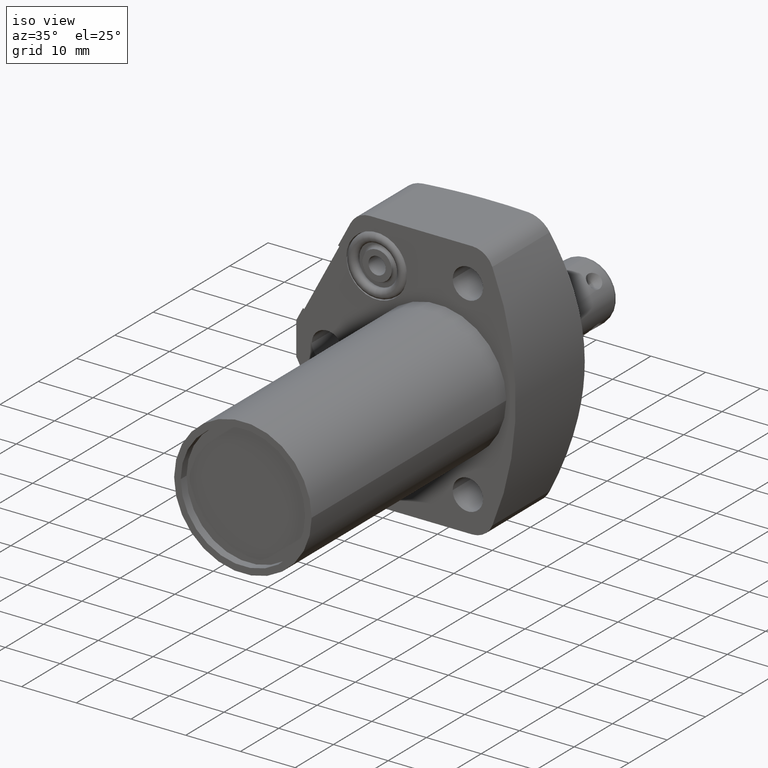
[diagram: clean part render]
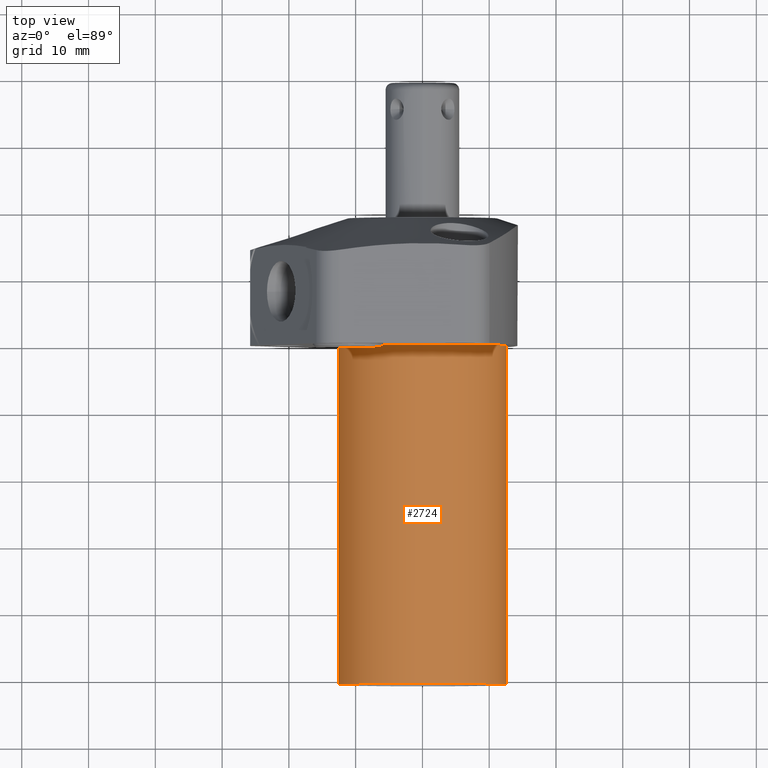
[diagram: tour spotlight — one face highlighted and labeled with its STEP entity id]
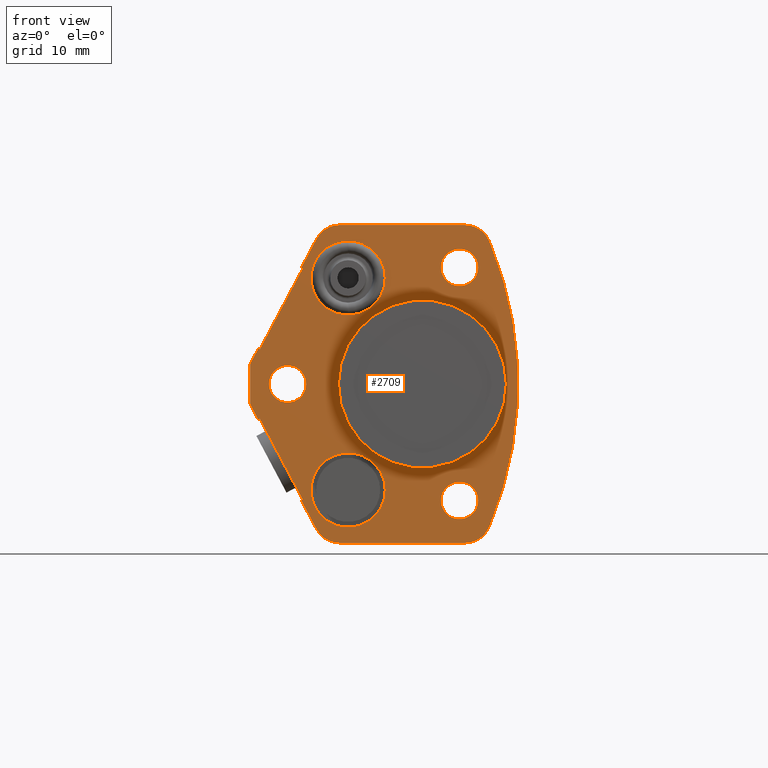
[diagram: tour spotlight — one face highlighted and labeled with its STEP entity id]
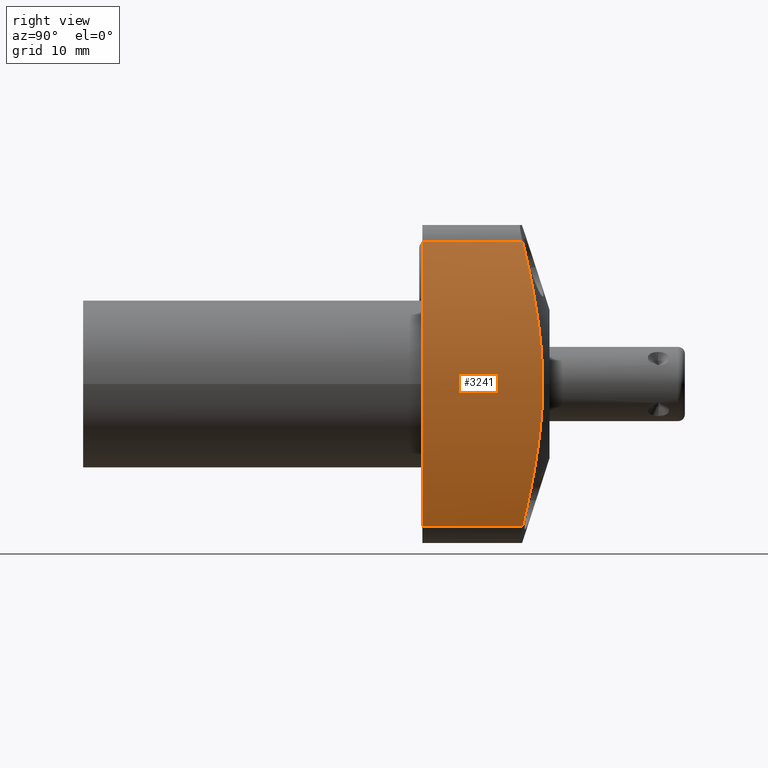
[diagram: tour spotlight — one face highlighted and labeled with its STEP entity id]
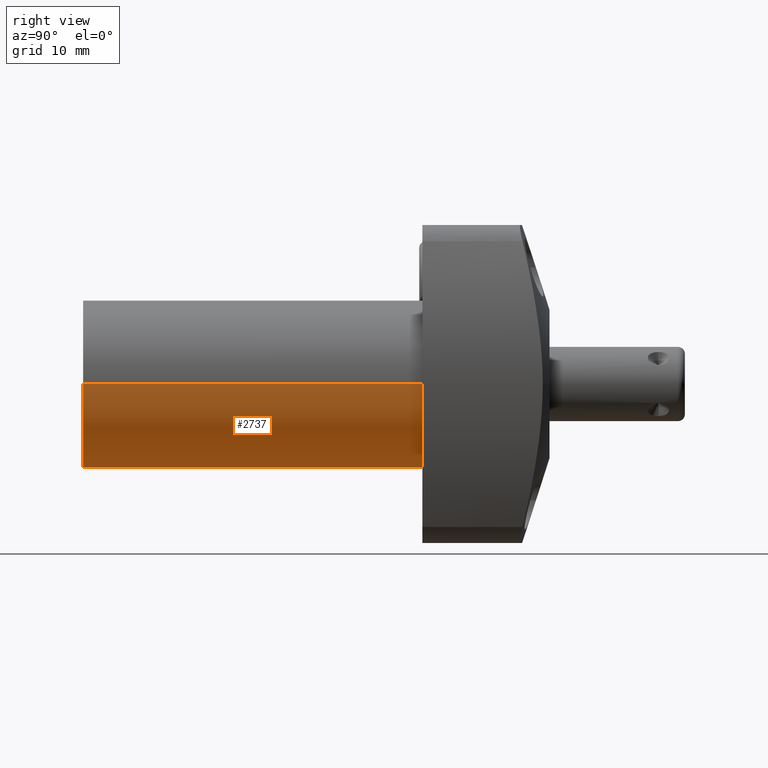
[diagram: tour spotlight — one face highlighted and labeled with its STEP entity id]
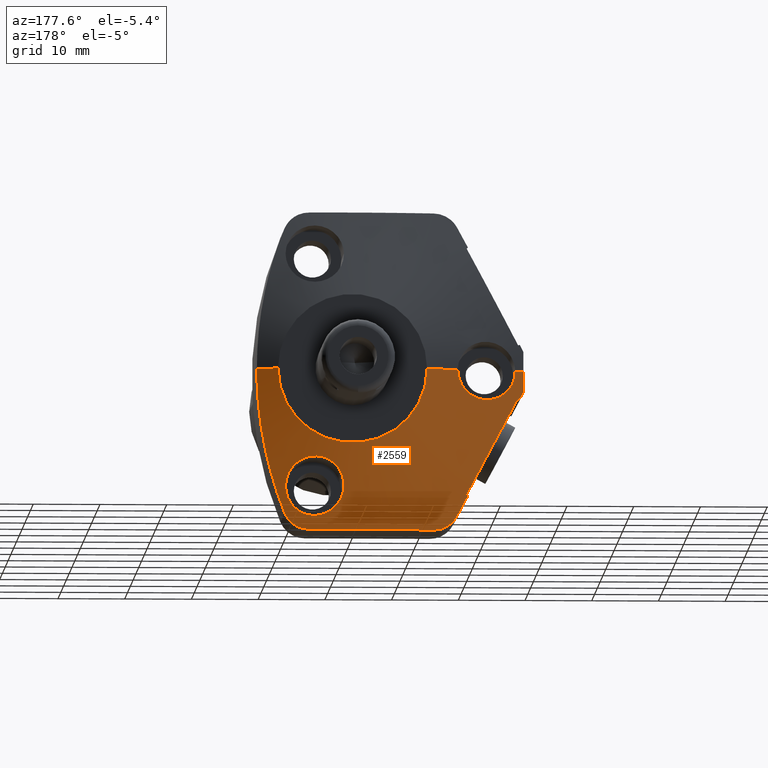
[diagram: tour spotlight — one face highlighted and labeled with its STEP entity id]
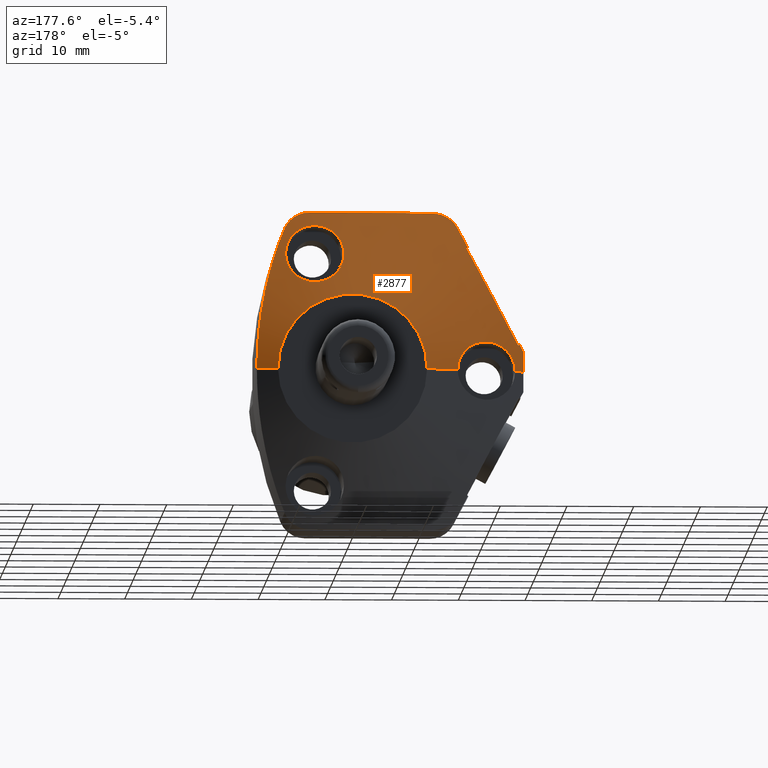
[diagram: tour spotlight — one face highlighted and labeled with its STEP entity id]
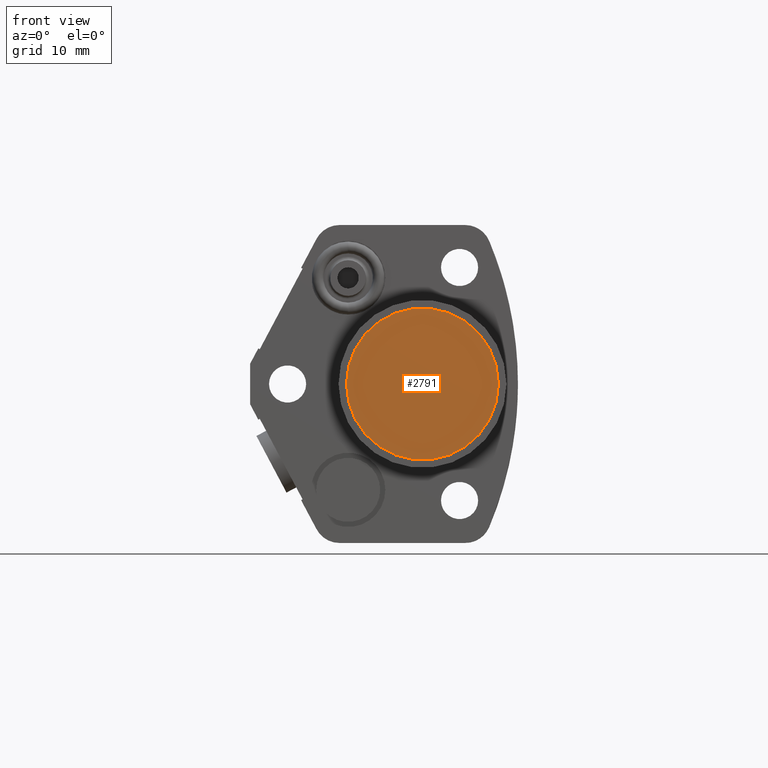
[diagram: tour spotlight — one face highlighted and labeled with its STEP entity id]
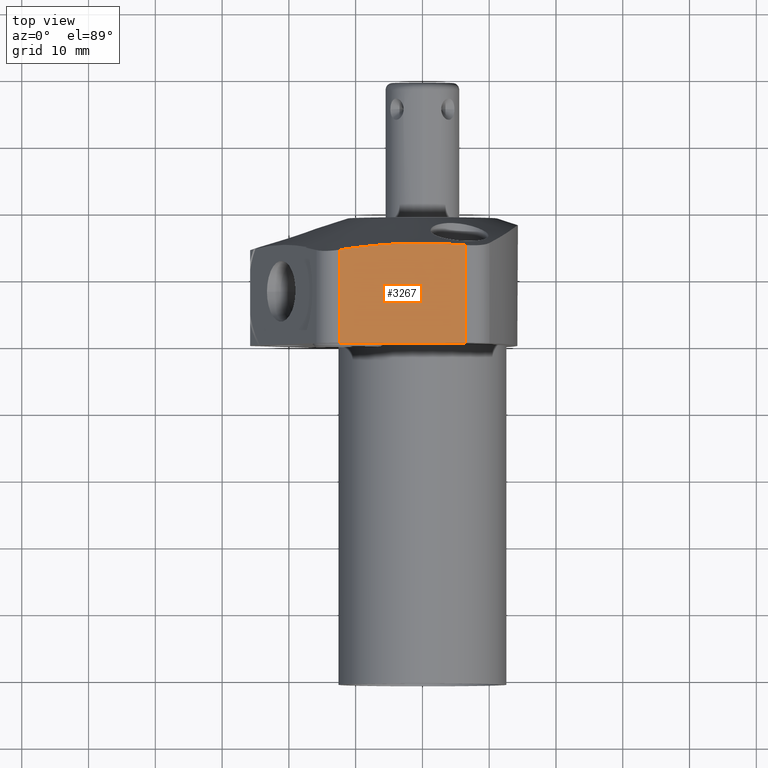
[diagram: tour spotlight — one face highlighted and labeled with its STEP entity id]
A machine part: a face-by-face anatomy tour. The part has 126 B-rep faces; the first image is the clean iso view, then the 8 largest visible faces are spotlighted one at a time (largest first), each with its STEP entity span.

Face 1 — top view, entity #2724. In plain terms, the highlighted cylindrical surface (partial cylindrical patch) has radius 12.573 mm, axis along (0, -1, 0).
Definition (entity closure, byte-faithful):
#365=CARTESIAN_POINT('',(0.E0,0.E0,0.E0));
#366=DIRECTION('',(0.E0,-1.E0,0.E0));
#367=DIRECTION('',(1.E0,0.E0,0.E0));
#368=AXIS2_PLACEMENT_3D('',#365,#366,#367);
#560=CARTESIAN_POINT('',(0.E0,-2.E0,0.E0));
#561=DIRECTION('',(0.E0,-1.E0,0.E0));
#562=DIRECTION('',(1.E0,0.E0,0.E0));
#563=AXIS2_PLACEMENT_3D('',#560,#561,#562);
#568=DIRECTION('',(0.E0,1.E0,0.E0));
#569=VECTOR('',#568,2.E0);
#570=CARTESIAN_POINT('',(4.95E-1,-2.E0,0.E0));
#571=LINE('',#570,#569);
#575=DIRECTION('',(0.E0,1.E0,0.E0));
#576=VECTOR('',#575,2.E0);
#577=CARTESIAN_POINT('',(-4.95E-1,-2.E0,0.E0));
#578=LINE('',#577,#576);
#2070=CARTESIAN_POINT('',(4.95E-1,-2.E0,0.E0));
#2071=CARTESIAN_POINT('',(4.95E-1,0.E0,0.E0));
#2072=VERTEX_POINT('',#2070);
#2073=VERTEX_POINT('',#2071);
#2074=CARTESIAN_POINT('',(-4.95E-1,-2.E0,0.E0));
#2075=CARTESIAN_POINT('',(-4.95E-1,0.E0,0.E0));
#2076=VERTEX_POINT('',#2074);
#2077=VERTEX_POINT('',#2075);
#2710=CARTESIAN_POINT('',(0.E0,8.875E-1,0.E0));
#2711=DIRECTION('',(0.E0,-1.E0,0.E0));
#2712=DIRECTION('',(-1.E0,0.E0,0.E0));
#2713=AXIS2_PLACEMENT_3D('',#2710,#2711,#2712);
#2714=CYLINDRICAL_SURFACE('',#2713,4.95E-1);
#2716=ORIENTED_EDGE('',*,*,#2715,.F.);
#2718=ORIENTED_EDGE('',*,*,#2717,.T.);
#2720=ORIENTED_EDGE('',*,*,#2719,.T.);
#2721=ORIENTED_EDGE('',*,*,#2691,.F.);
#2722=EDGE_LOOP('',(#2716,#2718,#2720,#2721));
#2723=FACE_OUTER_BOUND('',#2722,.F.);
#369=CIRCLE('',#368,4.95E-1);
#564=CIRCLE('',#563,4.95E-1);
#2691=EDGE_CURVE('',#2073,#2077,#369,.T.);
#2715=EDGE_CURVE('',#2072,#2073,#571,.T.);
#2717=EDGE_CURVE('',#2072,#2076,#564,.T.);
#2719=EDGE_CURVE('',#2076,#2077,#578,.T.);
#2724=ADVANCED_FACE('',(#2723),#2714,.T.);

Face 2 — front view, entity #2709. In plain terms, the highlighted planar face has unit normal (0, -1, 0).
Definition (entity closure, byte-faithful):
#365=CARTESIAN_POINT('',(0.E0,0.E0,0.E0));
#366=DIRECTION('',(0.E0,-1.E0,0.E0));
#367=DIRECTION('',(1.E0,0.E0,0.E0));
#368=AXIS2_PLACEMENT_3D('',#365,#366,#367);
#373=CARTESIAN_POINT('',(0.E0,0.E0,0.E0));
#374=DIRECTION('',(0.E0,1.E0,0.E0));
#375=DIRECTION('',(1.E0,0.E0,0.E0));
#376=AXIS2_PLACEMENT_3D('',#373,#374,#375);
#381=CARTESIAN_POINT('',(2.19E-1,0.E0,6.87E-1));
#382=DIRECTION('',(0.E0,-1.E0,0.E0));
#383=DIRECTION('',(1.E0,0.E0,0.E0));
#384=AXIS2_PLACEMENT_3D('',#381,#382,#383);
#389=CARTESIAN_POINT('',(2.19E-1,0.E0,6.87E-1));
#390=DIRECTION('',(0.E0,-1.E0,0.E0));
#391=DIRECTION('',(-1.E0,0.E0,0.E0));
#392=AXIS2_PLACEMENT_3D('',#389,#390,#391);
#397=CARTESIAN_POINT('',(2.19E-1,0.E0,-6.87E-1));
#398=DIRECTION('',(0.E0,-1.E0,0.E0));
#399=DIRECTION('',(1.E0,0.E0,0.E0));
#400=AXIS2_PLACEMENT_3D('',#397,#398,#399);
#405=CARTESIAN_POINT('',(2.19E-1,0.E0,-6.87E-1));
#406=DIRECTION('',(0.E0,-1.E0,0.E0));
#407=DIRECTION('',(-1.E0,0.E0,0.E0));
#408=AXIS2_PLACEMENT_3D('',#405,#406,#407);
#413=CARTESIAN_POINT('',(-7.95E-1,0.E0,0.E0));
#414=DIRECTION('',(0.E0,-1.E0,0.E0));
#415=DIRECTION('',(1.E0,0.E0,0.E0));
#416=AXIS2_PLACEMENT_3D('',#413,#414,#415);
#421=CARTESIAN_POINT('',(-7.95E-1,0.E0,0.E0));
#422=DIRECTION('',(0.E0,-1.E0,0.E0));
#423=DIRECTION('',(-1.E0,0.E0,0.E0));
#424=AXIS2_PLACEMENT_3D('',#421,#422,#423);
#429=DIRECTION('',(-4.694715627859E-1,0.E0,-8.829475928589E-1));
#430=VECTOR('',#429,5.373537010201E-1);
#431=CARTESIAN_POINT('',(-7.064834391726E-1,0.E0,6.799392621219E-1));
#432=LINE('',#431,#430);
#436=DIRECTION('',(8.829475928589E-1,0.E0,-4.694715627859E-1));
#437=VECTOR('',#436,1.E-2);
#438=CARTESIAN_POINT('',(-7.153129151012E-1,0.E0,6.846339777497E-1));
#439=LINE('',#438,#437);
#443=DIRECTION('',(4.694715627859E-1,0.E0,8.829475928589E-1));
#444=VECTOR('',#443,1.926542270692E-1);
#445=CARTESIAN_POINT('',(-7.153129151012E-1,0.E0,6.846339777497E-1));
#446=LINE('',#445,#444);
#450=DIRECTION('',(1.E0,0.E0,0.E0));
#451=VECTOR('',#450,7.378357424263E-1);
#452=CARTESIAN_POINT('',(-4.871274095557E-1,0.E0,9.375E-1));
#453=LINE('',#452,#451);
#457=CARTESIAN_POINT('',(-1.625E0,0.E0,0.E0));
#458=DIRECTION('',(0.E0,-1.E0,0.E0));
#459=DIRECTION('',(9.230848094835E-1,0.E0,-3.845964566929E-1));
#460=AXIS2_PLACEMENT_3D('',#457,#458,#459);
#465=DIRECTION('',(-1.E0,0.E0,0.E0));
#466=VECTOR('',#465,7.378357424263E-1);
#467=CARTESIAN_POINT('',(2.507083328705E-1,0.E0,-9.375E-1));
#468=LINE('',#467,#466);
#472=DIRECTION('',(4.694715627859E-1,0.E0,-8.829475928589E-1));
#473=VECTOR('',#472,1.926542270692E-1);
#474=CARTESIAN_POINT('',(-7.153129151012E-1,0.E0,-6.846339777497E-1));
#475=LINE('',#474,#473);
#479=DIRECTION('',(8.829475928589E-1,0.E0,4.694715627859E-1));
#480=VECTOR('',#479,1.E-2);
#481=CARTESIAN_POINT('',(-7.153129151012E-1,0.E0,-6.846339777497E-1));
#482=LINE('',#481,#480);
#486=DIRECTION('',(4.694715627859E-1,0.E0,-8.829475928589E-1));
#487=VECTOR('',#486,5.373537010201E-1);
#488=CARTESIAN_POINT('',(-9.587557209593E-1,0.E0,-2.054841052923E-1));
#489=LINE('',#488,#487);
#493=DIRECTION('',(8.829475928589E-1,0.E0,4.694715627859E-1));
#494=VECTOR('',#493,1.E-2);
#495=CARTESIAN_POINT('',(-9.675851968879E-1,0.E0,-2.101788209202E-1));
#496=LINE('',#495,#494);
#500=DIRECTION('',(4.694715627859E-1,0.E0,-8.829475928589E-1));
#501=VECTOR('',#500,1.031261676954E-1);
#502=CARTESIAN_POINT('',(-1.016E0,0.E0,-1.191238193927E-1));
#503=LINE('',#502,#501);
#507=DIRECTION('',(0.E0,0.E0,-1.E0));
#508=VECTOR('',#507,2.382476387855E-1);
#509=CARTESIAN_POINT('',(-1.016E0,0.E0,1.191238193927E-1));
#510=LINE('',#509,#508);
#514=DIRECTION('',(4.694715627859E-1,0.E0,8.829475928589E-1));
#515=VECTOR('',#514,1.031261676954E-1);
#516=CARTESIAN_POINT('',(-1.016E0,0.E0,1.191238193927E-1));
#517=LINE('',#516,#515);
#521=DIRECTION('',(8.829475928589E-1,0.E0,-4.694715627859E-1));
#522=VECTOR('',#521,1.E-2);
#523=CARTESIAN_POINT('',(-9.675851968879E-1,0.E0,2.101788209202E-1));
#524=LINE('',#523,#522);
#528=CARTESIAN_POINT('',(-4.38E-1,0.E0,-6.25E-1));
#529=DIRECTION('',(0.E0,1.E0,0.E0));
#530=DIRECTION('',(-1.E0,0.E0,0.E0));
#531=AXIS2_PLACEMENT_3D('',#528,#529,#530);
#536=CARTESIAN_POINT('',(-4.38E-1,0.E0,-6.25E-1));
#537=DIRECTION('',(0.E0,1.E0,0.E0));
#538=DIRECTION('',(1.E0,0.E0,0.E0));
#539=AXIS2_PLACEMENT_3D('',#536,#537,#538);
#544=CARTESIAN_POINT('',(-4.38E-1,0.E0,6.25E-1));
#545=DIRECTION('',(0.E0,1.E0,0.E0));
#546=DIRECTION('',(-1.E0,0.E0,0.E0));
#547=AXIS2_PLACEMENT_3D('',#544,#545,#546);
#552=CARTESIAN_POINT('',(-4.38E-1,0.E0,6.25E-1));
#553=DIRECTION('',(0.E0,1.E0,0.E0));
#554=DIRECTION('',(1.E0,0.E0,0.E0));
#555=AXIS2_PLACEMENT_3D('',#552,#553,#554);
#1146=CARTESIAN_POINT('',(-4.871274095557E-1,0.E0,-7.815E-1));
#1147=DIRECTION('',(0.E0,-1.E0,0.E0));
#1148=DIRECTION('',(-8.829475928589E-1,0.E0,-4.694715627859E-1));
#1149=AXIS2_PLACEMENT_3D('',#1146,#1147,#1148);
#1182=CARTESIAN_POINT('',(2.507083328705E-1,0.E0,-7.815E-1));
#1183=DIRECTION('',(0.E0,-1.E0,0.E0));
#1184=DIRECTION('',(0.E0,0.E0,-1.E0));
#1185=AXIS2_PLACEMENT_3D('',#1182,#1183,#1184);
#1204=CARTESIAN_POINT('',(2.507083328705E-1,0.E0,7.815E-1));
#1205=DIRECTION('',(0.E0,-1.E0,0.E0));
#1206=DIRECTION('',(9.230848094835E-1,0.E0,3.845964566929E-1));
#1207=AXIS2_PLACEMENT_3D('',#1204,#1205,#1206);
#1240=CARTESIAN_POINT('',(-4.871274095557E-1,0.E0,7.815E-1));
#1241=DIRECTION('',(0.E0,-1.E0,0.E0));
#1242=DIRECTION('',(0.E0,0.E0,1.E0));
#1243=AXIS2_PLACEMENT_3D('',#1240,#1241,#1242);
#2071=CARTESIAN_POINT('',(4.95E-1,0.E0,0.E0));
#2073=VERTEX_POINT('',#2071);
#2075=CARTESIAN_POINT('',(-4.95E-1,0.E0,0.E0));
#2077=VERTEX_POINT('',#2075);
#2078=CARTESIAN_POINT('',(-1.016E0,0.E0,1.191238193927E-1));
#2079=CARTESIAN_POINT('',(-1.016E0,0.E0,-1.191238193927E-1));
#2080=VERTEX_POINT('',#2078);
#2081=VERTEX_POINT('',#2079);
#2082=CARTESIAN_POINT('',(3.285E-1,0.E0,6.87E-1));
#2083=CARTESIAN_POINT('',(1.095E-1,0.E0,6.87E-1));
#2084=VERTEX_POINT('',#2082);
#2085=VERTEX_POINT('',#2083);
#2116=CARTESIAN_POINT('',(-9.587557209593E-1,0.E0,-2.054841052923E-1));
#2117=CARTESIAN_POINT('',(-7.064834391726E-1,0.E0,-6.799392621219E-1));
#2118=VERTEX_POINT('',#2116);
#2119=VERTEX_POINT('',#2117);
#2120=CARTESIAN_POINT('',(-9.675851968879E-1,0.E0,-2.101788209202E-1));
#2121=VERTEX_POINT('',#2120);
#2122=CARTESIAN_POINT('',(-7.153129151012E-1,0.E0,-6.846339777497E-1));
#2123=VERTEX_POINT('',#2122);
#2136=CARTESIAN_POINT('',(-7.064834391726E-1,0.E0,6.799392621219E-1));
#2137=CARTESIAN_POINT('',(-9.587557209593E-1,0.E0,2.054841052923E-1));
#2138=VERTEX_POINT('',#2136);
#2139=VERTEX_POINT('',#2137);
#2140=CARTESIAN_POINT('',(-7.153129151012E-1,0.E0,6.846339777497E-1));
#2141=VERTEX_POINT('',#2140);
#2142=CARTESIAN_POINT('',(-9.675851968879E-1,0.E0,2.101788209202E-1));
#2143=VERTEX_POINT('',#2142);
#2176=CARTESIAN_POINT('',(-6.57E-1,0.E0,-6.25E-1));
#2177=CARTESIAN_POINT('',(-2.19E-1,0.E0,-6.25E-1));
#2178=VERTEX_POINT('',#2176);
#2179=VERTEX_POINT('',#2177);
#2184=CARTESIAN_POINT('',(-6.57E-1,0.E0,6.25E-1));
#2185=CARTESIAN_POINT('',(-2.19E-1,0.E0,6.25E-1));
#2186=VERTEX_POINT('',#2184);
#2187=VERTEX_POINT('',#2185);
#2234=CARTESIAN_POINT('',(2.507083328705E-1,0.E0,-9.375E-1));
#2235=CARTESIAN_POINT('',(3.947095631500E-1,0.E0,-8.414970472441E-1));
#2236=VERTEX_POINT('',#2234);
#2237=VERTEX_POINT('',#2235);
#2238=CARTESIAN_POINT('',(3.947095631500E-1,0.E0,8.414970472441E-1));
#2239=CARTESIAN_POINT('',(2.507083328705E-1,0.E0,9.375E-1));
#2240=VERTEX_POINT('',#2238);
#2241=VERTEX_POINT('',#2239);
#2242=CARTESIAN_POINT('',(-4.871274095557E-1,0.E0,9.375E-1));
#2243=CARTESIAN_POINT('',(-6.248672340417E-1,0.E0,8.547375637946E-1));
#2244=VERTEX_POINT('',#2242);
#2245=VERTEX_POINT('',#2243);
#2246=CARTESIAN_POINT('',(-6.248672340417E-1,0.E0,-8.547375637946E-1));
#2247=CARTESIAN_POINT('',(-4.871274095557E-1,0.E0,-9.375E-1));
#2248=VERTEX_POINT('',#2246);
#2249=VERTEX_POINT('',#2247);
#2250=CARTESIAN_POINT('',(3.285E-1,0.E0,-6.87E-1));
#2251=CARTESIAN_POINT('',(1.095E-1,0.E0,-6.87E-1));
#2252=VERTEX_POINT('',#2250);
#2253=VERTEX_POINT('',#2251);
#2254=CARTESIAN_POINT('',(-6.855E-1,0.E0,0.E0));
#2255=CARTESIAN_POINT('',(-9.045E-1,0.E0,0.E0));
#2256=VERTEX_POINT('',#2254);
#2257=VERTEX_POINT('',#2255);
#2632=CARTESIAN_POINT('',(0.E0,0.E0,0.E0));
#2633=DIRECTION('',(0.E0,-1.E0,0.E0));
#2634=DIRECTION('',(-1.E0,0.E0,0.E0));
#2635=AXIS2_PLACEMENT_3D('',#2632,#2633,#2634);
#2636=PLANE('',#2635);
#2638=ORIENTED_EDGE('',*,*,#2637,.F.);
#2640=ORIENTED_EDGE('',*,*,#2639,.F.);
#2642=ORIENTED_EDGE('',*,*,#2641,.T.);
#2644=ORIENTED_EDGE('',*,*,#2643,.F.);
#2646=ORIENTED_EDGE('',*,*,#2645,.T.);
#2648=ORIENTED_EDGE('',*,*,#2647,.F.);
#2650=ORIENTED_EDGE('',*,*,#2649,.F.);
#2652=ORIENTED_EDGE('',*,*,#2651,.F.);
#2654=ORIENTED_EDGE('',*,*,#2653,.T.);
#2656=ORIENTED_EDGE('',*,*,#2655,.F.);
#2658=ORIENTED_EDGE('',*,*,#2657,.F.);
#2660=ORIENTED_EDGE('',*,*,#2659,.T.);
#2662=ORIENTED_EDGE('',*,*,#2661,.F.);
#2664=ORIENTED_EDGE('',*,*,#2663,.F.);
#2666=ORIENTED_EDGE('',*,*,#2665,.F.);
#2668=ORIENTED_EDGE('',*,*,#2667,.F.);
#2670=ORIENTED_EDGE('',*,*,#2669,.T.);
#2672=ORIENTED_EDGE('',*,*,#2671,.T.);
#2673=EDGE_LOOP('',(#2638,#2640,#2642,#2644,#2646,#2648,#2650,#2652,#2654,#2656,
#2658,#2660,#2662,#2664,#2666,#2668,#2670,#2672));
#2674=FACE_OUTER_BOUND('',#2673,.F.);
#2676=ORIENTED_EDGE('',*,*,#2675,.T.);
#2678=ORIENTED_EDGE('',*,*,#2677,.T.);
#2679=EDGE_LOOP('',(#2676,#2678));
#2680=FACE_BOUND('',#2679,.F.);
#2681=ORIENTED_EDGE('',*,*,#2612,.T.);
#2682=ORIENTED_EDGE('',*,*,#2626,.T.);
#2683=EDGE_LOOP('',(#2681,#2682));
#2684=FACE_BOUND('',#2683,.F.);
#2686=ORIENTED_EDGE('',*,*,#2685,.T.);
#2688=ORIENTED_EDGE('',*,*,#2687,.T.);
#2689=EDGE_LOOP('',(#2686,#2688));
#2690=FACE_BOUND('',#2689,.F.);
#2692=ORIENTED_EDGE('',*,*,#2691,.T.);
#2694=ORIENTED_EDGE('',*,*,#2693,.F.);
#2695=EDGE_LOOP('',(#2692,#2694));
#2696=FACE_BOUND('',#2695,.F.);
#2698=ORIENTED_EDGE('',*,*,#2697,.F.);
#2700=ORIENTED_EDGE('',*,*,#2699,.F.);
#2701=EDGE_LOOP('',(#2698,#2700));
#2702=FACE_BOUND('',#2701,.F.);
#2704=ORIENTED_EDGE('',*,*,#2703,.F.);
#2706=ORIENTED_EDGE('',*,*,#2705,.F.);
#2707=EDGE_LOOP('',(#2704,#2706));
#2708=FACE_BOUND('',#2707,.F.);
#369=CIRCLE('',#368,4.95E-1);
#377=CIRCLE('',#376,4.95E-1);
#385=CIRCLE('',#384,1.095E-1);
#393=CIRCLE('',#392,1.095E-1);
#401=CIRCLE('',#400,1.095E-1);
#409=CIRCLE('',#408,1.095E-1);
#417=CIRCLE('',#416,1.095E-1);
#425=CIRCLE('',#424,1.095E-1);
#461=CIRCLE('',#460,2.188E0);
#532=CIRCLE('',#531,2.19E-1);
#540=CIRCLE('',#539,2.19E-1);
#548=CIRCLE('',#547,2.19E-1);
#556=CIRCLE('',#555,2.19E-1);
#1150=CIRCLE('',#1149,1.56E-1);
#1186=CIRCLE('',#1185,1.56E-1);
#1208=CIRCLE('',#1207,1.56E-1);
#1244=CIRCLE('',#1243,1.56E-1);
#2612=EDGE_CURVE('',#2252,#2253,#401,.T.);
#2626=EDGE_CURVE('',#2253,#2252,#409,.T.);
#2637=EDGE_CURVE('',#2138,#2139,#432,.T.);
#2639=EDGE_CURVE('',#2141,#2138,#439,.T.);
#2641=EDGE_CURVE('',#2141,#2245,#446,.T.);
#2643=EDGE_CURVE('',#2244,#2245,#1244,.T.);
#2645=EDGE_CURVE('',#2244,#2241,#453,.T.);
#2647=EDGE_CURVE('',#2240,#2241,#1208,.T.);
#2649=EDGE_CURVE('',#2237,#2240,#461,.T.);
#2651=EDGE_CURVE('',#2236,#2237,#1186,.T.);
#2653=EDGE_CURVE('',#2236,#2249,#468,.T.);
#2655=EDGE_CURVE('',#2248,#2249,#1150,.T.);
#2657=EDGE_CURVE('',#2123,#2248,#475,.T.);
#2659=EDGE_CURVE('',#2123,#2119,#482,.T.);
#2661=EDGE_CURVE('',#2118,#2119,#489,.T.);
#2663=EDGE_CURVE('',#2121,#2118,#496,.T.);
#2665=EDGE_CURVE('',#2081,#2121,#503,.T.);
#2667=EDGE_CURVE('',#2080,#2081,#510,.T.);
#2669=EDGE_CURVE('',#2080,#2143,#517,.T.);
#2671=EDGE_CURVE('',#2143,#2139,#524,.T.);
#2675=EDGE_CURVE('',#2084,#2085,#385,.T.);
#2677=EDGE_CURVE('',#2085,#2084,#393,.T.);
#2685=EDGE_CURVE('',#2256,#2257,#417,.T.);
#2687=EDGE_CURVE('',#2257,#2256,#425,.T.);
#2691=EDGE_CURVE('',#2073,#2077,#369,.T.);
#2693=EDGE_CURVE('',#2073,#2077,#377,.T.);
#2697=EDGE_CURVE('',#2178,#2179,#532,.T.);
#2699=EDGE_CURVE('',#2179,#2178,#540,.T.);
#2703=EDGE_CURVE('',#2186,#2187,#548,.T.);
#2705=EDGE_CURVE('',#2187,#2186,#556,.T.);
#2709=ADVANCED_FACE('',(#2674,#2680,#2684,#2690,#2696,#2702,#2708),#2636,.T.);

Face 3 — right view, entity #3241. In plain terms, the highlighted cylindrical surface (partial cylindrical patch) has radius 55.5752 mm, axis along (0, -1, 0).
Definition (entity closure, byte-faithful):
#264=CARTESIAN_POINT('',(3.947095631500E-1,5.909618291525E-1,
-8.414970472441E-1));
#265=CARTESIAN_POINT('',(4.247000126165E-1,6.079982121119E-1,
-7.695158111969E-1));
#266=CARTESIAN_POINT('',(4.760263835802E-1,6.400498863932E-1,
-6.249731136591E-1));
#267=CARTESIAN_POINT('',(5.290684486143E-1,6.797462317642E-1,
-4.042989132272E-1));
#268=CARTESIAN_POINT('',(5.574267652860E-1,7.046828930845E-1,
-1.953358565437E-1));
#269=CARTESIAN_POINT('',(5.63E-1,7.100348773634E-1,-6.355329243008E-2));
#270=CARTESIAN_POINT('',(5.63E-1,7.100348773634E-1,0.E0));
#457=CARTESIAN_POINT('',(-1.625E0,0.E0,0.E0));
#458=DIRECTION('',(0.E0,-1.E0,0.E0));
#459=DIRECTION('',(9.230848094835E-1,0.E0,-3.845964566929E-1));
#460=AXIS2_PLACEMENT_3D('',#457,#458,#459);
#775=CARTESIAN_POINT('',(5.63E-1,7.100348773634E-1,0.E0));
#776=CARTESIAN_POINT('',(5.63E-1,7.100348773634E-1,6.377315602706E-2));
#777=CARTESIAN_POINT('',(5.573829070447E-1,7.046413450592E-1,
1.958056606039E-1));
#778=CARTESIAN_POINT('',(5.290405060093E-1,6.797287717732E-1,
4.043279316884E-1));
#779=CARTESIAN_POINT('',(4.761578368490E-1,6.401420448320E-1,
6.245151729424E-1));
#780=CARTESIAN_POINT('',(4.247846751135E-1,6.080463055132E-1,
7.693126094680E-1));
#781=CARTESIAN_POINT('',(3.947095631500E-1,5.909618291525E-1,
8.414970472441E-1));
#1190=DIRECTION('',(0.E0,-1.E0,0.E0));
#1191=VECTOR('',#1190,5.909618291525E-1);
#1192=CARTESIAN_POINT('',(3.947095631500E-1,5.909618291525E-1,
-8.414970472441E-1));
#1193=LINE('',#1192,#1191);
#1197=DIRECTION('',(0.E0,1.E0,-1.540510461561E-14));
#1198=VECTOR('',#1197,5.909618291525E-1);
#1199=CARTESIAN_POINT('',(3.947095631500E-1,0.E0,8.414970472441E-1));
#1200=LINE('',#1199,#1198);
#2108=CARTESIAN_POINT('',(5.63E-1,7.100348773634E-1,0.E0));
#2109=VERTEX_POINT('',#2108);
#2112=VERTEX_POINT('',#264);
#2113=VERTEX_POINT('',#781);
#2235=CARTESIAN_POINT('',(3.947095631500E-1,0.E0,-8.414970472441E-1));
#2237=VERTEX_POINT('',#2235);
#2238=CARTESIAN_POINT('',(3.947095631500E-1,0.E0,8.414970472441E-1));
#2240=VERTEX_POINT('',#2238);
#3228=CARTESIAN_POINT('',(-1.625E0,0.E0,0.E0));
#3229=DIRECTION('',(0.E0,-1.E0,0.E0));
#3230=DIRECTION('',(-1.E0,0.E0,0.E0));
#3231=AXIS2_PLACEMENT_3D('',#3228,#3229,#3230);
#3232=CYLINDRICAL_SURFACE('',#3231,2.188E0);
#3233=ORIENTED_EDGE('',*,*,#2534,.F.);
#3234=ORIENTED_EDGE('',*,*,#3223,.T.);
#3235=ORIENTED_EDGE('',*,*,#2649,.T.);
#3237=ORIENTED_EDGE('',*,*,#3236,.T.);
#3238=ORIENTED_EDGE('',*,*,#2858,.F.);
#3239=EDGE_LOOP('',(#3233,#3234,#3235,#3237,#3238));
#3240=FACE_OUTER_BOUND('',#3239,.F.);
#271=B_SPLINE_CURVE_WITH_KNOTS('',3,(#264,#265,#266,#267,#268,#269,#270),
.UNSPECIFIED.,.F.,.F.,(4,1,1,1,4),(0.E0,2.5E-1,5.E-1,7.5E-1,1.E0),
.UNSPECIFIED.);
#461=CIRCLE('',#460,2.188E0);
#782=B_SPLINE_CURVE_WITH_KNOTS('',3,(#775,#776,#777,#778,#779,#780,#781),
.UNSPECIFIED.,.F.,.F.,(4,1,1,1,4),(0.E0,2.5E-1,5.E-1,7.5E-1,1.E0),
.UNSPECIFIED.);
#2534=EDGE_CURVE('',#2112,#2109,#271,.T.);
#2649=EDGE_CURVE('',#2237,#2240,#461,.T.);
#2858=EDGE_CURVE('',#2109,#2113,#782,.T.);
#3223=EDGE_CURVE('',#2112,#2237,#1193,.T.);
#3236=EDGE_CURVE('',#2240,#2113,#1200,.T.);
#3241=ADVANCED_FACE('',(#3240),#3232,.T.);

Face 4 — right view, entity #2737. In plain terms, the highlighted cylindrical surface (partial cylindrical patch) has radius 12.573 mm, axis along (0, -1, 0).
Definition (entity closure, byte-faithful):
#373=CARTESIAN_POINT('',(0.E0,0.E0,0.E0));
#374=DIRECTION('',(0.E0,1.E0,0.E0));
#375=DIRECTION('',(1.E0,0.E0,0.E0));
#376=AXIS2_PLACEMENT_3D('',#373,#374,#375);
#568=DIRECTION('',(0.E0,1.E0,0.E0));
#569=VECTOR('',#568,2.E0);
#570=CARTESIAN_POINT('',(4.95E-1,-2.E0,0.E0));
#571=LINE('',#570,#569);
#575=DIRECTION('',(0.E0,1.E0,0.E0));
#576=VECTOR('',#575,2.E0);
#577=CARTESIAN_POINT('',(-4.95E-1,-2.E0,0.E0));
#578=LINE('',#577,#576);
#582=CARTESIAN_POINT('',(0.E0,-2.E0,0.E0));
#583=DIRECTION('',(0.E0,1.E0,0.E0));
#584=DIRECTION('',(1.E0,0.E0,0.E0));
#585=AXIS2_PLACEMENT_3D('',#582,#583,#584);
#2070=CARTESIAN_POINT('',(4.95E-1,-2.E0,0.E0));
#2071=CARTESIAN_POINT('',(4.95E-1,0.E0,0.E0));
#2072=VERTEX_POINT('',#2070);
#2073=VERTEX_POINT('',#2071);
#2074=CARTESIAN_POINT('',(-4.95E-1,-2.E0,0.E0));
#2075=CARTESIAN_POINT('',(-4.95E-1,0.E0,0.E0));
#2076=VERTEX_POINT('',#2074);
#2077=VERTEX_POINT('',#2075);
#2725=CARTESIAN_POINT('',(0.E0,8.875E-1,0.E0));
#2726=DIRECTION('',(0.E0,-1.E0,0.E0));
#2727=DIRECTION('',(-1.E0,0.E0,0.E0));
#2728=AXIS2_PLACEMENT_3D('',#2725,#2726,#2727);
#2729=CYLINDRICAL_SURFACE('',#2728,4.95E-1);
#2730=ORIENTED_EDGE('',*,*,#2715,.T.);
#2731=ORIENTED_EDGE('',*,*,#2693,.T.);
#2732=ORIENTED_EDGE('',*,*,#2719,.F.);
#2734=ORIENTED_EDGE('',*,*,#2733,.F.);
#2735=EDGE_LOOP('',(#2730,#2731,#2732,#2734));
#2736=FACE_OUTER_BOUND('',#2735,.F.);
#377=CIRCLE('',#376,4.95E-1);
#586=CIRCLE('',#585,4.95E-1);
#2693=EDGE_CURVE('',#2073,#2077,#377,.T.);
#2715=EDGE_CURVE('',#2072,#2073,#571,.T.);
#2719=EDGE_CURVE('',#2076,#2077,#578,.T.);
#2733=EDGE_CURVE('',#2072,#2076,#586,.T.);
#2737=ADVANCED_FACE('',(#2736),#2729,.T.);

Face 5 — auxiliary view, entity #2559. In plain terms, the highlighted conical surface has half-angle 72 deg.
Definition (entity closure, byte-faithful):
#156=CARTESIAN_POINT('',(0.E0,7.5E-1,0.E0));
#157=DIRECTION('',(0.E0,-1.E0,0.E0));
#158=DIRECTION('',(-1.E0,0.E0,0.E0));
#159=AXIS2_PLACEMENT_3D('',#156,#157,#158);
#188=CARTESIAN_POINT('',(3.905E-1,6.362042388452E-1,-6.87E-1));
#189=CARTESIAN_POINT('',(3.905E-1,6.399101377635E-1,-6.738806340818E-1));
#190=CARTESIAN_POINT('',(3.874919724542E-1,6.477579599857E-1,
-6.476271615399E-1));
#191=CARTESIAN_POINT('',(3.739500608280E-1,6.604912898768E-1,
-6.099773157420E-1));
#192=CARTESIAN_POINT('',(3.522069588100E-1,6.734429828962E-1,
-5.765549915417E-1));
#193=CARTESIAN_POINT('',(3.232337062217E-1,6.860170135459E-1,
-5.488715026367E-1));
#194=CARTESIAN_POINT('',(2.890009482490E-1,6.972048359645E-1,
-5.288232040168E-1));
#195=CARTESIAN_POINT('',(2.521103097411E-1,7.060829782360E-1,
-5.172710602531E-1));
#196=CARTESIAN_POINT('',(2.139803204936E-1,7.121199573131E-1,
-5.142087233094E-1));
#197=CARTESIAN_POINT('',(1.772846108927E-1,7.148091717890E-1,
-5.192939105151E-1));
#198=CARTESIAN_POINT('',(1.425252189421E-1,7.141296511655E-1,
-5.320364996471E-1));
#199=CARTESIAN_POINT('',(1.114316422936E-1,7.101892196035E-1,
-5.517114825607E-1));
#200=CARTESIAN_POINT('',(8.450819697887E-2,7.031247915791E-1,
-5.783491293241E-1));
#201=CARTESIAN_POINT('',(6.389360762183E-2,6.935518513542E-1,
-6.105070928206E-1));
#202=CARTESIAN_POINT('',(5.058075313093E-2,6.819718736090E-1,
-6.474303734492E-1));
#203=CARTESIAN_POINT('',(4.75E-2,6.735207387117E-1,-6.737071581192E-1));
#204=CARTESIAN_POINT('',(4.75E-2,6.692119194515E-1,-6.87E-1));
#209=CARTESIAN_POINT('',(4.75E-2,6.692119194515E-1,-6.87E-1));
#210=CARTESIAN_POINT('',(4.75E-2,6.649284907897E-1,-7.002145110923E-1));
#211=CARTESIAN_POINT('',(5.054750427706E-2,6.563282891178E-1,
-7.265425761819E-1));
#212=CARTESIAN_POINT('',(6.409220152575E-2,6.438505793917E-1,
-7.640554374783E-1));
#213=CARTESIAN_POINT('',(8.557314776112E-2,6.325078530528E-1,
-7.971213815253E-1));
#214=CARTESIAN_POINT('',(1.140524616367E-1,6.225620623166E-1,
-8.245156511410E-1));
#215=CARTESIAN_POINT('',(1.474657108480E-1,6.144981547039E-1,
-8.444509077297E-1));
#216=CARTESIAN_POINT('',(1.841253408339E-1,6.084290979600E-1,
-8.563768418902E-1));
#217=CARTESIAN_POINT('',(2.223832828808E-1,6.044670269203E-1,
-8.598723780382E-1));
#218=CARTESIAN_POINT('',(2.600621710699E-1,6.026961726181E-1,
-8.549446568930E-1));
#219=CARTESIAN_POINT('',(2.957754909070E-1,6.031097730259E-1,
-8.419018916602E-1));
#220=CARTESIAN_POINT('',(3.276322567204E-1,6.056790070312E-1,
-8.214987819901E-1));
#221=CARTESIAN_POINT('',(3.544944308355E-1,6.103831109430E-1,
-7.944104963122E-1));
#222=CARTESIAN_POINT('',(3.747507359049E-1,6.170838920757E-1,
-7.620958053574E-1));
#223=CARTESIAN_POINT('',(3.875336140206E-1,6.256667838711E-1,
-7.258096257362E-1));
#224=CARTESIAN_POINT('',(3.905E-1,6.325327729438E-1,-6.999974685436E-1));
#225=CARTESIAN_POINT('',(3.905E-1,6.362042388452E-1,-6.87E-1));
#230=CARTESIAN_POINT('',(-6.883834070915E-1,5.656961853935E-1,
-7.352810161623E-1));
#231=CARTESIAN_POINT('',(-6.871097981322E-1,5.662562403470E-1,
-7.341122103263E-1));
#232=CARTESIAN_POINT('',(-6.845699409749E-1,5.673746598797E-1,
-7.317747640356E-1));
#233=CARTESIAN_POINT('',(-6.820448380996E-1,5.684896979966E-1,
-7.294376352087E-1));
#234=CARTESIAN_POINT('',(-6.807859837138E-1,5.690463714848E-1,
-7.282691466953E-1));
#239=CARTESIAN_POINT('',(-4.871274095557E-1,5.496859134741E-1,-9.375E-1));
#240=CARTESIAN_POINT('',(-4.984399655190E-1,5.479911524756E-1,-9.375E-1));
#241=CARTESIAN_POINT('',(-5.210259060925E-1,5.452250688082E-1,
-9.350320150446E-1));
#242=CARTESIAN_POINT('',(-5.532515648873E-1,5.430546718760E-1,
-9.241389809551E-1));
#243=CARTESIAN_POINT('',(-5.822446058616E-1,5.429120920163E-1,
-9.066729507310E-1));
#244=CARTESIAN_POINT('',(-6.068335177847E-1,5.447812043005E-1,
-8.834217822662E-1));
#245=CARTESIAN_POINT('',(-6.195733948962E-1,5.473466837296E-1,
-8.646938271789E-1));
#246=CARTESIAN_POINT('',(-6.248672340417E-1,5.489430794105E-1,
-8.547375637946E-1));
#251=CARTESIAN_POINT('',(2.507083328705E-1,5.776484036192E-1,-9.375E-1));
#252=CARTESIAN_POINT('',(2.608785695064E-1,5.767947031235E-1,-9.375E-1));
#253=CARTESIAN_POINT('',(2.812064559462E-1,5.756167990068E-1,
-9.355044504778E-1));
#254=CARTESIAN_POINT('',(3.104991803618E-1,5.754730680303E-1,
-9.266611651686E-1));
#255=CARTESIAN_POINT('',(3.375038007091E-1,5.769498652329E-1,
-9.123186356659E-1));
#256=CARTESIAN_POINT('',(3.612653671567E-1,5.800200476393E-1,
-8.929738732240E-1));
#257=CARTESIAN_POINT('',(3.809131887893E-1,5.846392215521E-1,
-8.692509467708E-1));
#258=CARTESIAN_POINT('',(3.907344548189E-1,5.887037280224E-1,
-8.510378582750E-1));
#259=CARTESIAN_POINT('',(3.947095631500E-1,5.909618291525E-1,
-8.414970472441E-1));
#264=CARTESIAN_POINT('',(3.947095631500E-1,5.909618291525E-1,
-8.414970472441E-1));
#265=CARTESIAN_POINT('',(4.247000126165E-1,6.079982121119E-1,
-7.695158111969E-1));
#266=CARTESIAN_POINT('',(4.760263835802E-1,6.400498863932E-1,
-6.249731136591E-1));
#267=CARTESIAN_POINT('',(5.290684486143E-1,6.797462317642E-1,
-4.042989132272E-1));
#268=CARTESIAN_POINT('',(5.574267652860E-1,7.046828930845E-1,
-1.953358565437E-1));
#269=CARTESIAN_POINT('',(5.63E-1,7.100348773634E-1,-6.355329243008E-2));
#270=CARTESIAN_POINT('',(5.63E-1,7.100348773634E-1,0.E0));
#275=CARTESIAN_POINT('',(-9.665E-1,5.789297799334E-1,0.E0));
#276=CARTESIAN_POINT('',(-9.665E-1,5.789297799334E-1,-1.259528274939E-2));
#277=CARTESIAN_POINT('',(-9.637062241478E-1,5.796751892287E-1,
-3.780427945085E-2));
#278=CARTESIAN_POINT('',(-9.513880226600E-1,5.829848975037E-1,
-7.374652680588E-2));
#279=CARTESIAN_POINT('',(-9.313245511884E-1,5.884535137591E-1,
-1.063639478730E-1));
#280=CARTESIAN_POINT('',(-9.046149880461E-1,5.958900764272E-1,
-1.337521332967E-1));
#281=CARTESIAN_POINT('',(-8.719853846909E-1,6.052371972914E-1,
-1.548919304350E-1));
#282=CARTESIAN_POINT('',(-8.352252730824E-1,6.161494319322E-1,
-1.682423098156E-1));
#283=CARTESIAN_POINT('',(-7.960273555221E-1,6.282850524269E-1,
-1.730190332339E-1));
#284=CARTESIAN_POINT('',(-7.563756007710E-1,6.411661314324E-1,
-1.686657128703E-1));
#285=CARTESIAN_POINT('',(-7.188027384551E-1,6.540242664323E-1,
-1.553604065637E-1));
#286=CARTESIAN_POINT('',(-6.852242985546E-1,6.661481698420E-1,
-1.337219725843E-1));
#287=CARTESIAN_POINT('',(-6.580392250968E-1,6.764757981028E-1,
-1.056139987847E-1));
#288=CARTESIAN_POINT('',(-6.380636379010E-1,6.843983780009E-1,
-7.258342276945E-2));
#289=CARTESIAN_POINT('',(-6.261027901265E-1,6.892944940573E-1,
-3.674808035970E-2));
#290=CARTESIAN_POINT('',(-6.235E-1,6.903772357413E-1,-1.216724941265E-2));
#291=CARTESIAN_POINT('',(-6.235E-1,6.903772357413E-1,0.E0));
#296=CARTESIAN_POINT('',(-9.844531764181E-1,5.690463714848E-1,
-1.571542207189E-1));
#297=CARTESIAN_POINT('',(-9.861258397378E-1,5.684896979966E-1,
-1.575444478186E-1));
#298=CARTESIAN_POINT('',(-9.894754269556E-1,5.673746598797E-1,
-1.583309471223E-1));
#299=CARTESIAN_POINT('',(-9.928335278527E-1,5.662562403470E-1,
-1.591295007566E-1));
#300=CARTESIAN_POINT('',(-9.945147048976E-1,5.656961853935E-1,
-1.595317825076E-1));
#733=DIRECTION('',(9.510565162952E-1,3.090169943749E-1,0.E0));
#734=VECTOR('',#733,5.204738009979E-2);
#735=CARTESIAN_POINT('',(-1.016E0,5.628462549698E-1,0.E0));
#736=LINE('',#735,#734);
#761=DIRECTION('',(9.510565162952E-1,3.090169943749E-1,0.E0));
#762=VECTOR('',#761,1.929433181477E-1);
#763=CARTESIAN_POINT('',(-6.235E-1,6.903772357413E-1,0.E0));
#764=LINE('',#763,#762);
#768=DIRECTION('',(-9.510565162952E-1,3.090169943749E-1,0.E0));
#769=VECTOR('',#768,1.293298535813E-1);
#770=CARTESIAN_POINT('',(5.63E-1,7.100348773634E-1,0.E0));
#771=LINE('',#770,#769);
#981=CARTESIAN_POINT('',(-1.016E0,5.628462549698E-1,0.E0));
#982=CARTESIAN_POINT('',(-1.016E0,5.628462549698E-1,-1.325099786676E-2));
#983=CARTESIAN_POINT('',(-1.016E0,5.626777463101E-1,-3.974304228392E-2));
#984=CARTESIAN_POINT('',(-1.016E0,5.619215322993E-1,-7.945649368971E-2));
#985=CARTESIAN_POINT('',(-1.016E0,5.610850721695E-1,-1.059052404431E-1));
#986=CARTESIAN_POINT('',(-1.016E0,5.605849214410E-1,-1.191238193927E-1));
#1001=CARTESIAN_POINT('',(-6.883834070915E-1,5.656961853935E-1,
-7.352810161623E-1));
#1002=CARTESIAN_POINT('',(-6.778781139471E-1,5.633426798416E-1,
-7.550385990053E-1));
#1003=CARTESIAN_POINT('',(-6.567873923191E-1,5.581836070725E-1,
-7.947044773443E-1));
#1004=CARTESIAN_POINT('',(-6.355348125713E-1,5.521599652703E-1,
-8.346747665329E-1));
#1005=CARTESIAN_POINT('',(-6.248672340417E-1,5.489430794105E-1,
-8.547375637946E-1));
#1018=CARTESIAN_POINT('',(-1.016E0,5.605849214410E-1,-1.191238193927E-1));
#1019=CARTESIAN_POINT('',(-1.012416827803E0,5.614862618183E-1,
-1.258627861739E-1));
#1020=CARTESIAN_POINT('',(-1.005252812923E0,5.632401790698E-1,
-1.393363385561E-1));
#1021=CARTESIAN_POINT('',(-9.980933340436E-1,5.648944634951E-1,
-1.528013599631E-1));
#1022=CARTESIAN_POINT('',(-9.945147048976E-1,5.656961853935E-1,
-1.595317825076E-1));
#1065=CARTESIAN_POINT('',(-9.844531764181E-1,5.690463714848E-1,
-1.571542207189E-1));
#1066=CARTESIAN_POINT('',(-9.642555672210E-1,5.735812521305E-1,
-1.951403988726E-1));
#1067=CARTESIAN_POINT('',(-9.238256986409E-1,5.810341395679E-1,
-2.711779227018E-1));
#1068=CARTESIAN_POINT('',(-8.631047754921E-1,5.868035187656E-1,
-3.853773698679E-1));
#1069=CARTESIAN_POINT('',(-8.021227609405E-1,5.868031219303E-1,
-5.000678585453E-1));
#1070=CARTESIAN_POINT('',(-7.413976984543E-1,5.810318216391E-1,
-6.142750906729E-1));
#1071=CARTESIAN_POINT('',(-7.009771709842E-1,5.735798102434E-1,
-6.902950464292E-1));
#1072=CARTESIAN_POINT('',(-6.807859837138E-1,5.690463714848E-1,
-7.282691466953E-1));
#1161=CARTESIAN_POINT('',(-4.871274095557E-1,5.496859134741E-1,-9.375E-1));
#1162=CARTESIAN_POINT('',(-4.510718769179E-1,5.550874788405E-1,-9.375E-1));
#1163=CARTESIAN_POINT('',(-3.795359925083E-1,5.648527661477E-1,-9.375E-1));
#1164=CARTESIAN_POINT('',(-2.747648331567E-1,5.760974697431E-1,-9.375E-1));
#1165=CARTESIAN_POINT('',(-1.699827295833E-1,5.839938430427E-1,-9.375E-1));
#1166=CARTESIAN_POINT('',(-6.483549617746E-2,5.882634935265E-1,-9.375E-1));
#1167=CARTESIAN_POINT('',(4.061678660332E-2,5.887082318786E-1,-9.375E-1));
#1168=CARTESIAN_POINT('',(1.457885810721E-1,5.853077439705E-1,-9.375E-1));
#1169=CARTESIAN_POINT('',(2.157585793786E-1,5.805821231528E-1,-9.375E-1));
#1170=CARTESIAN_POINT('',(2.507083328705E-1,5.776484036192E-1,-9.375E-1));
#2094=CARTESIAN_POINT('',(-4.4E-1,7.5E-1,0.E0));
#2095=CARTESIAN_POINT('',(4.4E-1,7.5E-1,0.E0));
#2096=VERTEX_POINT('',#2094);
#2097=VERTEX_POINT('',#2095);
#2100=VERTEX_POINT('',#1161);
#2101=VERTEX_POINT('',#1170);
#2102=CARTESIAN_POINT('',(-1.016E0,5.628462549698E-1,0.E0));
#2103=CARTESIAN_POINT('',(-9.665E-1,5.789297799334E-1,0.E0));
#2104=VERTEX_POINT('',#2102);
#2105=VERTEX_POINT('',#2103);
#2106=CARTESIAN_POINT('',(-6.235E-1,6.903772357413E-1,0.E0));
#2107=VERTEX_POINT('',#2106);
#2108=CARTESIAN_POINT('',(5.63E-1,7.100348773634E-1,0.E0));
#2109=VERTEX_POINT('',#2108);
#2110=VERTEX_POINT('',#986);
#2112=VERTEX_POINT('',#264);
#2124=CARTESIAN_POINT('',(-9.945147048976E-1,5.656961853935E-1,
-1.595317825076E-1));
#2126=VERTEX_POINT('',#2124);
#2132=VERTEX_POINT('',#1065);
#2133=VERTEX_POINT('',#1072);
#2134=VERTEX_POINT('',#230);
#2135=VERTEX_POINT('',#1005);
#2274=VERTEX_POINT('',#188);
#2275=VERTEX_POINT('',#204);
#2517=CARTESIAN_POINT('',(0.E0,6.465039855171E-1,0.E0));
#2518=DIRECTION('',(0.E0,-1.E0,0.E0));
#2519=DIRECTION('',(-1.E0,0.E0,0.E0));
#2520=AXIS2_PLACEMENT_3D('',#2517,#2518,#2519);
#2521=CONICAL_SURFACE('',#2520,7.585279799374E-1,7.2E1);
#2523=ORIENTED_EDGE('',*,*,#2522,.T.);
#2525=ORIENTED_EDGE('',*,*,#2524,.F.);
#2527=ORIENTED_EDGE('',*,*,#2526,.T.);
#2529=ORIENTED_EDGE('',*,*,#2528,.F.);
#2531=ORIENTED_EDGE('',*,*,#2530,.T.);
#2533=ORIENTED_EDGE('',*,*,#2532,.T.);
#2535=ORIENTED_EDGE('',*,*,#2534,.T.);
#2537=ORIENTED_EDGE('',*,*,#2536,.T.);
#2538=ORIENTED_EDGE('',*,*,#2505,.F.);
#2540=ORIENTED_EDGE('',*,*,#2539,.F.);
#2542=ORIENTED_EDGE('',*,*,#2541,.F.);
#2544=ORIENTED_EDGE('',*,*,#2543,.F.);
#2546=ORIENTED_EDGE('',*,*,#2545,.T.);
#2548=ORIENTED_EDGE('',*,*,#2547,.T.);
#2550=ORIENTED_EDGE('',*,*,#2549,.F.);
#2551=EDGE_LOOP('',(#2523,#2525,#2527,#2529,#2531,#2533,#2535,#2537,#2538,#2540,
#2542,#2544,#2546,#2548,#2550));
#2552=FACE_OUTER_BOUND('',#2551,.F.);
#2554=ORIENTED_EDGE('',*,*,#2553,.F.);
#2556=ORIENTED_EDGE('',*,*,#2555,.F.);
#2557=EDGE_LOOP('',(#2554,#2556));
#2558=FACE_BOUND('',#2557,.F.);
#160=CIRCLE('',#159,4.4E-1);
#205=B_SPLINE_CURVE_WITH_KNOTS('',3,(#188,#189,#190,#191,#192,#193,#194,#195,
#196,#197,#198,#199,#200,#201,#202,#203,#204),.UNSPECIFIED.,.F.,.F.,(4,1,1,1,1,
1,1,1,1,1,1,1,1,1,4),(0.E0,7.142857142857E-2,1.428571428571E-1,
2.142857142857E-1,2.857142857143E-1,3.571428571429E-1,4.285714285714E-1,5.E-1,
5.714285714286E-1,6.428571428571E-1,7.142857142857E-1,7.857142857143E-1,
8.571428571429E-1,9.285714285714E-1,1.E0),.UNSPECIFIED.);
#226=B_SPLINE_CURVE_WITH_KNOTS('',3,(#209,#210,#211,#212,#213,#214,#215,#216,
#217,#218,#219,#220,#221,#222,#223,#224,#225),.UNSPECIFIED.,.F.,.F.,(4,1,1,1,1,
1,1,1,1,1,1,1,1,1,4),(0.E0,7.142857142857E-2,1.428571428571E-1,
2.142857142857E-1,2.857142857143E-1,3.571428571429E-1,4.285714285714E-1,5.E-1,
5.714285714286E-1,6.428571428571E-1,7.142857142857E-1,7.857142857143E-1,
8.571428571429E-1,9.285714285714E-1,1.E0),.UNSPECIFIED.);
#235=B_SPLINE_CURVE_WITH_KNOTS('',3,(#230,#231,#232,#233,#234),.UNSPECIFIED.,
.F.,.F.,(4,1,4),(0.E0,5.E-1,1.E0),.UNSPECIFIED.);
#247=B_SPLINE_CURVE_WITH_KNOTS('',3,(#239,#240,#241,#242,#243,#244,#245,#246),
.UNSPECIFIED.,.F.,.F.,(4,1,1,1,1,4),(0.E0,2.E-1,4.E-1,6.E-1,8.E-1,1.E0),
.UNSPECIFIED.);
#260=B_SPLINE_CURVE_WITH_KNOTS('',3,(#251,#252,#253,#254,#255,#256,#257,#258,
#259),.UNSPECIFIED.,.F.,.F.,(4,1,1,1,1,1,4),(0.E0,1.666666666667E-1,
3.333333333333E-1,5.E-1,6.666666666667E-1,8.333333333333E-1,1.E0),
.UNSPECIFIED.);
#271=B_SPLINE_CURVE_WITH_KNOTS('',3,(#264,#265,#266,#267,#268,#269,#270),
.UNSPECIFIED.,.F.,.F.,(4,1,1,1,4),(0.E0,2.5E-1,5.E-1,7.5E-1,1.E0),
.UNSPECIFIED.);
#292=B_SPLINE_CURVE_WITH_KNOTS('',3,(#275,#276,#277,#278,#279,#280,#281,#282,
#283,#284,#285,#286,#287,#288,#289,#290,#291),.UNSPECIFIED.,.F.,.F.,(4,1,1,1,1,
1,1,1,1,1,1,1,1,1,4),(0.E0,7.142857142857E-2,1.428571428571E-1,
2.142857142857E-1,2.857142857143E-1,3.571428571429E-1,4.285714285714E-1,5.E-1,
5.714285714286E-1,6.428571428571E-1,7.142857142857E-1,7.857142857143E-1,
8.571428571429E-1,9.285714285714E-1,1.E0),.UNSPECIFIED.);
#301=B_SPLINE_CURVE_WITH_KNOTS('',3,(#296,#297,#298,#299,#300),.UNSPECIFIED.,
.F.,.F.,(4,1,4),(0.E0,5.E-1,1.E0),.UNSPECIFIED.);
#987=B_SPLINE_CURVE_WITH_KNOTS('',3,(#981,#982,#983,#984,#985,#986),
.UNSPECIFIED.,.F.,.F.,(4,1,1,4),(0.E0,3.333333333333E-1,6.666666666667E-1,1.E0),
.UNSPECIFIED.);
#1006=B_SPLINE_CURVE_WITH_KNOTS('',3,(#1001,#1002,#1003,#1004,#1005),
.UNSPECIFIED.,.F.,.F.,(4,1,4),(0.E0,5.E-1,1.E0),.UNSPECIFIED.);
#1023=B_SPLINE_CURVE_WITH_KNOTS('',3,(#1018,#1019,#1020,#1021,#1022),
.UNSPECIFIED.,.F.,.F.,(4,1,4),(0.E0,5.E-1,1.E0),.UNSPECIFIED.);
#1073=B_SPLINE_CURVE_WITH_KNOTS('',3,(#1065,#1066,#1067,#1068,#1069,#1070,#1071,
#1072),.UNSPECIFIED.,.F.,.F.,(4,1,1,1,1,4),(0.E0,2.E-1,4.E-1,6.E-1,8.E-1,1.E0),
.UNSPECIFIED.);
#1171=B_SPLINE_CURVE_WITH_KNOTS('',3,(#1161,#1162,#1163,#1164,#1165,#1166,#1167,
#1168,#1169,#1170),.UNSPECIFIED.,.F.,.F.,(4,1,1,1,1,1,1,4),(0.E0,
1.428571428571E-1,2.857142857143E-1,4.285714285714E-1,5.714285714286E-1,
7.142857142857E-1,8.571428571429E-1,1.E0),.UNSPECIFIED.);
#2505=EDGE_CURVE('',#2096,#2097,#160,.T.);
#2522=EDGE_CURVE('',#2132,#2133,#1073,.T.);
#2524=EDGE_CURVE('',#2134,#2133,#235,.T.);
#2526=EDGE_CURVE('',#2134,#2135,#1006,.T.);
#2528=EDGE_CURVE('',#2100,#2135,#247,.T.);
#2530=EDGE_CURVE('',#2100,#2101,#1171,.T.);
#2532=EDGE_CURVE('',#2101,#2112,#260,.T.);
#2534=EDGE_CURVE('',#2112,#2109,#271,.T.);
#2536=EDGE_CURVE('',#2109,#2097,#771,.T.);
#2539=EDGE_CURVE('',#2107,#2096,#764,.T.);
#2541=EDGE_CURVE('',#2105,#2107,#292,.T.);
#2543=EDGE_CURVE('',#2104,#2105,#736,.T.);
#2545=EDGE_CURVE('',#2104,#2110,#987,.T.);
#2547=EDGE_CURVE('',#2110,#2126,#1023,.T.);
#2549=EDGE_CURVE('',#2132,#2126,#301,.T.);
#2553=EDGE_CURVE('',#2274,#2275,#205,.T.);
#2555=EDGE_CURVE('',#2275,#2274,#226,.T.);
#2559=ADVANCED_FACE('',(#2552,#2558),#2521,.T.);

Face 6 — auxiliary view, entity #2877. In plain terms, the highlighted conical surface has half-angle 72 deg.
Definition (entity closure, byte-faithful):
#164=CARTESIAN_POINT('',(0.E0,7.5E-1,0.E0));
#165=DIRECTION('',(0.E0,-1.E0,0.E0));
#166=DIRECTION('',(1.E0,0.E0,0.E0));
#167=AXIS2_PLACEMENT_3D('',#164,#165,#166);
#682=CARTESIAN_POINT('',(3.905E-1,6.362042388452E-1,6.87E-1));
#683=CARTESIAN_POINT('',(3.905E-1,6.325170881745E-1,7.000529946741E-1));
#684=CARTESIAN_POINT('',(3.875140023515E-1,6.256028647022E-1,
7.260469177769E-1));
#685=CARTESIAN_POINT('',(3.744315687407E-1,6.169080602650E-1,
7.628633676059E-1));
#686=CARTESIAN_POINT('',(3.536348878639E-1,6.101609406564E-1,
7.955505278134E-1));
#687=CARTESIAN_POINT('',(3.261654949466E-1,6.054925981217E-1,
8.227062485160E-1));
#688=CARTESIAN_POINT('',(2.938207047252E-1,6.030234303544E-1,
8.428710103702E-1));
#689=CARTESIAN_POINT('',(2.578360591218E-1,6.027408618962E-1,
8.554749660031E-1));
#690=CARTESIAN_POINT('',(2.201731034215E-1,6.046400265962E-1,
8.598874468341E-1));
#691=CARTESIAN_POINT('',(1.822381529646E-1,6.086901878966E-1,
8.559529980116E-1));
#692=CARTESIAN_POINT('',(1.460463904124E-1,6.147952253206E-1,
8.437633166070E-1));
#693=CARTESIAN_POINT('',(1.132130841821E-1,6.228206201235E-1,
8.238225566416E-1));
#694=CARTESIAN_POINT('',(8.521046367373E-2,6.326786703400E-1,
7.966285621376E-1));
#695=CARTESIAN_POINT('',(6.401191516921E-2,6.439230108037E-1,
7.638375788282E-1));
#696=CARTESIAN_POINT('',(5.056206475717E-2,6.563231500256E-1,
7.265574260161E-1));
#697=CARTESIAN_POINT('',(4.75E-2,6.649196323515E-1,7.002418396506E-1));
#698=CARTESIAN_POINT('',(4.75E-2,6.692119194515E-1,6.87E-1));
#703=CARTESIAN_POINT('',(4.75E-2,6.692119194515E-1,6.87E-1));
#704=CARTESIAN_POINT('',(4.75E-2,6.735208962601E-1,6.737066720774E-1));
#705=CARTESIAN_POINT('',(5.057434829405E-2,6.820070819903E-1,
6.473228852712E-1));
#706=CARTESIAN_POINT('',(6.415608783383E-2,6.937529413705E-1,
6.098626416133E-1));
#707=CARTESIAN_POINT('',(8.533674333356E-2,7.034438386310E-1,
5.772483062985E-1));
#708=CARTESIAN_POINT('',(1.130332137605E-1,7.105093380273E-1,
5.503972740693E-1));
#709=CARTESIAN_POINT('',(1.447767774134E-1,7.142900472828E-1,
5.309259580782E-1));
#710=CARTESIAN_POINT('',(1.797748400791E-1,7.147253528828E-1,
5.187046204272E-1));
#711=CARTESIAN_POINT('',(2.162017629851E-1,7.118397014810E-1,
5.141969534109E-1));
#712=CARTESIAN_POINT('',(2.536297117762E-1,7.057567735426E-1,
5.176286971865E-1));
#713=CARTESIAN_POINT('',(2.897472198247E-1,6.969743053388E-1,
5.292148303537E-1));
#714=CARTESIAN_POINT('',(3.233425134269E-1,6.859603318308E-1,
5.490079450260E-1));
#715=CARTESIAN_POINT('',(3.520564625116E-1,6.735123038797E-1,
5.763972536785E-1));
#716=CARTESIAN_POINT('',(3.738527849218E-1,6.605678043556E-1,
6.097606101560E-1));
#717=CARTESIAN_POINT('',(3.874862311906E-1,6.477788146624E-1,
6.475559083709E-1));
#718=CARTESIAN_POINT('',(3.905E-1,6.399166921064E-1,6.738574308526E-1));
#719=CARTESIAN_POINT('',(3.905E-1,6.362042388452E-1,6.87E-1));
#724=CARTESIAN_POINT('',(-9.945147048976E-1,5.656961853935E-1,
1.595317825076E-1));
#725=CARTESIAN_POINT('',(-9.928335278527E-1,5.662562403470E-1,
1.591295007566E-1));
#726=CARTESIAN_POINT('',(-9.894754269556E-1,5.673746598797E-1,
1.583309471223E-1));
#727=CARTESIAN_POINT('',(-9.861258397378E-1,5.684896979966E-1,
1.575444478186E-1));
#728=CARTESIAN_POINT('',(-9.844531764181E-1,5.690463714848E-1,
1.571542207189E-1));
#733=DIRECTION('',(9.510565162952E-1,3.090169943749E-1,0.E0));
#734=VECTOR('',#733,5.204738009979E-2);
#735=CARTESIAN_POINT('',(-1.016E0,5.628462549698E-1,0.E0));
#736=LINE('',#735,#734);
#740=CARTESIAN_POINT('',(-6.235E-1,6.903772357413E-1,0.E0));
#741=CARTESIAN_POINT('',(-6.235E-1,6.903772357413E-1,1.216345391132E-2));
#742=CARTESIAN_POINT('',(-6.261042247251E-1,6.892940211265E-1,
3.662183160305E-2));
#743=CARTESIAN_POINT('',(-6.378161137225E-1,6.844997034795E-1,
7.191710332661E-2));
#744=CARTESIAN_POINT('',(-6.571766443145E-1,6.768143615659E-1,
1.043885964368E-1));
#745=CARTESIAN_POINT('',(-6.835457117640E-1,6.667747892037E-1,
1.322625182171E-1));
#746=CARTESIAN_POINT('',(-7.163571520789E-1,6.548880801536E-1,
1.541029204765E-1));
#747=CARTESIAN_POINT('',(-7.534832442404E-1,6.421323062313E-1,
1.679746262213E-1));
#748=CARTESIAN_POINT('',(-7.931847601010E-1,6.291859799219E-1,
1.730312916784E-1));
#749=CARTESIAN_POINT('',(-8.327966326745E-1,6.168837613758E-1,
1.688416125022E-1));
#750=CARTESIAN_POINT('',(-8.702720203460E-1,6.057346269410E-1,
1.557817157593E-1));
#751=CARTESIAN_POINT('',(-9.035821565924E-1,5.961802674282E-1,
1.346460072257E-1));
#752=CARTESIAN_POINT('',(-9.308554075288E-1,5.885819333441E-1,
1.070252223693E-1));
#753=CARTESIAN_POINT('',(-9.512624055539E-1,5.830186456215E-1,
7.407863862619E-2));
#754=CARTESIAN_POINT('',(-9.637071741525E-1,5.796749185182E-1,
3.786556122328E-2));
#755=CARTESIAN_POINT('',(-9.665E-1,5.789297799334E-1,1.259433131741E-2));
#756=CARTESIAN_POINT('',(-9.665E-1,5.789297799334E-1,0.E0));
#761=DIRECTION('',(9.510565162952E-1,3.090169943749E-1,0.E0));
#762=VECTOR('',#761,1.929433181477E-1);
#763=CARTESIAN_POINT('',(-6.235E-1,6.903772357413E-1,0.E0));
#764=LINE('',#763,#762);
#768=DIRECTION('',(-9.510565162952E-1,3.090169943749E-1,0.E0));
#769=VECTOR('',#768,1.293298535813E-1);
#770=CARTESIAN_POINT('',(5.63E-1,7.100348773634E-1,0.E0));
#771=LINE('',#770,#769);
#775=CARTESIAN_POINT('',(5.63E-1,7.100348773634E-1,0.E0));
#776=CARTESIAN_POINT('',(5.63E-1,7.100348773634E-1,6.377315602706E-2));
#777=CARTESIAN_POINT('',(5.573829070447E-1,7.046413450592E-1,
1.958056606039E-1));
#778=CARTESIAN_POINT('',(5.290405060093E-1,6.797287717732E-1,
4.043279316884E-1));
#779=CARTESIAN_POINT('',(4.761578368490E-1,6.401420448320E-1,
6.245151729424E-1));
#780=CARTESIAN_POINT('',(4.247846751135E-1,6.080463055132E-1,
7.693126094680E-1));
#781=CARTESIAN_POINT('',(3.947095631500E-1,5.909618291525E-1,
8.414970472441E-1));
#786=CARTESIAN_POINT('',(2.507083328705E-1,5.776484036192E-1,9.375E-1));
#787=CARTESIAN_POINT('',(2.608785695064E-1,5.767947031235E-1,9.375E-1));
#788=CARTESIAN_POINT('',(2.812064559462E-1,5.756167990068E-1,
9.355044504778E-1));
#789=CARTESIAN_POINT('',(3.104991803618E-1,5.754730680303E-1,
9.266611651686E-1));
#790=CARTESIAN_POINT('',(3.375038007091E-1,5.769498652329E-1,
9.123186356659E-1));
#791=CARTESIAN_POINT('',(3.612653671567E-1,5.800200476393E-1,
8.929738732240E-1));
#792=CARTESIAN_POINT('',(3.809131887893E-1,5.846392215521E-1,
8.692509467708E-1));
#793=CARTESIAN_POINT('',(3.907344548189E-1,5.887037280224E-1,
8.510378582749E-1));
#794=CARTESIAN_POINT('',(3.947095631500E-1,5.909618291525E-1,
8.414970472441E-1));
#799=CARTESIAN_POINT('',(-4.871274095557E-1,5.496859134741E-1,9.375E-1));
#800=CARTESIAN_POINT('',(-4.984399655190E-1,5.479911524756E-1,9.375E-1));
#801=CARTESIAN_POINT('',(-5.210259060925E-1,5.452250688082E-1,
9.350320150446E-1));
#802=CARTESIAN_POINT('',(-5.532515648873E-1,5.430546718760E-1,
9.241389809551E-1));
#803=CARTESIAN_POINT('',(-5.822446058616E-1,5.429120920163E-1,
9.066729507310E-1));
#804=CARTESIAN_POINT('',(-6.068335177847E-1,5.447812043005E-1,
8.834217822662E-1));
#805=CARTESIAN_POINT('',(-6.195733948962E-1,5.473466837296E-1,
8.646938271789E-1));
#806=CARTESIAN_POINT('',(-6.248672340417E-1,5.489430794105E-1,
8.547375637946E-1));
#811=CARTESIAN_POINT('',(-6.807859837138E-1,5.690463714848E-1,
7.282691466953E-1));
#812=CARTESIAN_POINT('',(-6.820448380996E-1,5.684896979966E-1,
7.294376352087E-1));
#813=CARTESIAN_POINT('',(-6.845699409749E-1,5.673746598797E-1,
7.317747640356E-1));
#814=CARTESIAN_POINT('',(-6.871097981322E-1,5.662562403470E-1,
7.341122103263E-1));
#815=CARTESIAN_POINT('',(-6.883834070915E-1,5.656961853935E-1,
7.352810161623E-1));
#843=CARTESIAN_POINT('',(-6.807859837138E-1,5.690463714848E-1,
7.282691466953E-1));
#844=CARTESIAN_POINT('',(-7.009835929109E-1,5.735812521305E-1,
6.902829685416E-1));
#845=CARTESIAN_POINT('',(-7.414134614911E-1,5.810341395679E-1,
6.142454447124E-1));
#846=CARTESIAN_POINT('',(-8.021343846398E-1,5.868035187656E-1,
5.000459975463E-1));
#847=CARTESIAN_POINT('',(-8.631163991915E-1,5.868031219303E-1,
3.853555088689E-1));
#848=CARTESIAN_POINT('',(-9.238414616776E-1,5.810318216391E-1,
2.711482767413E-1));
#849=CARTESIAN_POINT('',(-9.642619891478E-1,5.735798102434E-1,
1.951283209850E-1));
#850=CARTESIAN_POINT('',(-9.844531764181E-1,5.690463714848E-1,
1.571542207189E-1));
#902=CARTESIAN_POINT('',(-9.945147048976E-1,5.656961853935E-1,
1.595317825076E-1));
#903=CARTESIAN_POINT('',(-9.980929228910E-1,5.648945556058E-1,
1.528021332286E-1));
#904=CARTESIAN_POINT('',(-1.005251991163E0,5.632403746708E-1,
1.393378840614E-1));
#905=CARTESIAN_POINT('',(-1.012416417235E0,5.614863650958E-1,
1.258635583391E-1));
#906=CARTESIAN_POINT('',(-1.016E0,5.605849214410E-1,1.191238193927E-1));
#911=CARTESIAN_POINT('',(-6.248672340417E-1,5.489430794105E-1,
8.547375637946E-1));
#912=CARTESIAN_POINT('',(-6.355393451742E-1,5.521613321097E-1,
8.346662419466E-1));
#913=CARTESIAN_POINT('',(-6.567964808583E-1,5.581860135858E-1,
7.946873842881E-1));
#914=CARTESIAN_POINT('',(-6.778826665815E-1,5.633436997703E-1,
7.550300367453E-1));
#915=CARTESIAN_POINT('',(-6.883834070915E-1,5.656961853935E-1,
7.352810161623E-1));
#991=CARTESIAN_POINT('',(-1.016E0,5.605849214410E-1,1.191238193927E-1));
#992=CARTESIAN_POINT('',(-1.016E0,5.610850973742E-1,1.059045743014E-1));
#993=CARTESIAN_POINT('',(-1.016E0,5.619215735350E-1,7.945494200763E-2));
#994=CARTESIAN_POINT('',(-1.016E0,5.626777592595E-1,3.974177100964E-2));
#995=CARTESIAN_POINT('',(-1.016E0,5.628462549698E-1,1.325045442683E-2));
#996=CARTESIAN_POINT('',(-1.016E0,5.628462549698E-1,0.E0));
#1219=CARTESIAN_POINT('',(2.507083328705E-1,5.776484036192E-1,9.375E-1));
#1220=CARTESIAN_POINT('',(2.157554910746E-1,5.805823823883E-1,9.375E-1));
#1221=CARTESIAN_POINT('',(1.457546307966E-1,5.853107216078E-1,9.375E-1));
#1222=CARTESIAN_POINT('',(4.042795607416E-2,5.887130066012E-1,9.375E-1));
#1223=CARTESIAN_POINT('',(-6.518733633255E-2,5.882574094542E-1,9.375E-1));
#1224=CARTESIAN_POINT('',(-1.704665367889E-1,5.839666891848E-1,9.375E-1));
#1225=CARTESIAN_POINT('',(-2.752825103085E-1,5.760494246446E-1,9.375E-1));
#1226=CARTESIAN_POINT('',(-3.799194451771E-1,5.648033976092E-1,9.375E-1));
#1227=CARTESIAN_POINT('',(-4.512216200444E-1,5.550650454655E-1,9.375E-1));
#1228=CARTESIAN_POINT('',(-4.871274095557E-1,5.496859134741E-1,9.375E-1));
#2094=CARTESIAN_POINT('',(-4.4E-1,7.5E-1,0.E0));
#2095=CARTESIAN_POINT('',(4.4E-1,7.5E-1,0.E0));
#2096=VERTEX_POINT('',#2094);
#2097=VERTEX_POINT('',#2095);
#2098=VERTEX_POINT('',#1219);
#2099=VERTEX_POINT('',#1228);
#2102=CARTESIAN_POINT('',(-1.016E0,5.628462549698E-1,0.E0));
#2103=CARTESIAN_POINT('',(-9.665E-1,5.789297799334E-1,0.E0));
#2104=VERTEX_POINT('',#2102);
#2105=VERTEX_POINT('',#2103);
#2106=CARTESIAN_POINT('',(-6.235E-1,6.903772357413E-1,0.E0));
#2107=VERTEX_POINT('',#2106);
#2108=CARTESIAN_POINT('',(5.63E-1,7.100348773634E-1,0.E0));
#2109=VERTEX_POINT('',#2108);
#2111=VERTEX_POINT('',#991);
#2113=VERTEX_POINT('',#781);
#2114=VERTEX_POINT('',#682);
#2115=VERTEX_POINT('',#698);
#2145=CARTESIAN_POINT('',(-9.945147048976E-1,5.656961853935E-1,
1.595317825076E-1));
#2147=VERTEX_POINT('',#2145);
#2152=VERTEX_POINT('',#843);
#2153=VERTEX_POINT('',#850);
#2154=VERTEX_POINT('',#815);
#2155=VERTEX_POINT('',#911);
#2839=CARTESIAN_POINT('',(0.E0,6.465039855171E-1,0.E0));
#2840=DIRECTION('',(0.E0,-1.E0,0.E0));
#2841=DIRECTION('',(-1.E0,0.E0,0.E0));
#2842=AXIS2_PLACEMENT_3D('',#2839,#2840,#2841);
#2843=CONICAL_SURFACE('',#2842,7.585279799374E-1,7.2E1);
#2845=ORIENTED_EDGE('',*,*,#2844,.T.);
#2847=ORIENTED_EDGE('',*,*,#2846,.F.);
#2849=ORIENTED_EDGE('',*,*,#2848,.T.);
#2851=ORIENTED_EDGE('',*,*,#2850,.T.);
#2852=ORIENTED_EDGE('',*,*,#2543,.T.);
#2854=ORIENTED_EDGE('',*,*,#2853,.F.);
#2855=ORIENTED_EDGE('',*,*,#2539,.T.);
#2856=ORIENTED_EDGE('',*,*,#2507,.F.);
#2857=ORIENTED_EDGE('',*,*,#2536,.F.);
#2859=ORIENTED_EDGE('',*,*,#2858,.T.);
#2861=ORIENTED_EDGE('',*,*,#2860,.F.);
#2863=ORIENTED_EDGE('',*,*,#2862,.T.);
#2865=ORIENTED_EDGE('',*,*,#2864,.T.);
#2867=ORIENTED_EDGE('',*,*,#2866,.T.);
#2869=ORIENTED_EDGE('',*,*,#2868,.F.);
#2870=EDGE_LOOP('',(#2845,#2847,#2849,#2851,#2852,#2854,#2855,#2856,#2857,#2859,
#2861,#2863,#2865,#2867,#2869));
#2871=FACE_OUTER_BOUND('',#2870,.F.);
#2872=ORIENTED_EDGE('',*,*,#2829,.F.);
#2874=ORIENTED_EDGE('',*,*,#2873,.F.);
#2875=EDGE_LOOP('',(#2872,#2874));
#2876=FACE_BOUND('',#2875,.F.);
#168=CIRCLE('',#167,4.4E-1);
#699=B_SPLINE_CURVE_WITH_KNOTS('',3,(#682,#683,#684,#685,#686,#687,#688,#689,
#690,#691,#692,#693,#694,#695,#696,#697,#698),.UNSPECIFIED.,.F.,.F.,(4,1,1,1,1,
1,1,1,1,1,1,1,1,1,4),(0.E0,7.142857142857E-2,1.428571428571E-1,
2.142857142857E-1,2.857142857143E-1,3.571428571429E-1,4.285714285714E-1,5.E-1,
5.714285714286E-1,6.428571428571E-1,7.142857142857E-1,7.857142857143E-1,
8.571428571429E-1,9.285714285714E-1,1.E0),.UNSPECIFIED.);
#720=B_SPLINE_CURVE_WITH_KNOTS('',3,(#703,#704,#705,#706,#707,#708,#709,#710,
#711,#712,#713,#714,#715,#716,#717,#718,#719),.UNSPECIFIED.,.F.,.F.,(4,1,1,1,1,
1,1,1,1,1,1,1,1,1,4),(0.E0,7.142857142857E-2,1.428571428571E-1,
2.142857142857E-1,2.857142857143E-1,3.571428571429E-1,4.285714285714E-1,5.E-1,
5.714285714286E-1,6.428571428571E-1,7.142857142857E-1,7.857142857143E-1,
8.571428571429E-1,9.285714285714E-1,1.E0),.UNSPECIFIED.);
#729=B_SPLINE_CURVE_WITH_KNOTS('',3,(#724,#725,#726,#727,#728),.UNSPECIFIED.,
.F.,.F.,(4,1,4),(0.E0,5.E-1,1.E0),.UNSPECIFIED.);
#757=B_SPLINE_CURVE_WITH_KNOTS('',3,(#740,#741,#742,#743,#744,#745,#746,#747,
#748,#749,#750,#751,#752,#753,#754,#755,#756),.UNSPECIFIED.,.F.,.F.,(4,1,1,1,1,
1,1,1,1,1,1,1,1,1,4),(0.E0,7.142857142857E-2,1.428571428571E-1,
2.142857142857E-1,2.857142857143E-1,3.571428571429E-1,4.285714285714E-1,5.E-1,
5.714285714286E-1,6.428571428571E-1,7.142857142857E-1,7.857142857143E-1,
8.571428571429E-1,9.285714285714E-1,1.E0),.UNSPECIFIED.);
#782=B_SPLINE_CURVE_WITH_KNOTS('',3,(#775,#776,#777,#778,#779,#780,#781),
.UNSPECIFIED.,.F.,.F.,(4,1,1,1,4),(0.E0,2.5E-1,5.E-1,7.5E-1,1.E0),
.UNSPECIFIED.);
#795=B_SPLINE_CURVE_WITH_KNOTS('',3,(#786,#787,#788,#789,#790,#791,#792,#793,
#794),.UNSPECIFIED.,.F.,.F.,(4,1,1,1,1,1,4),(0.E0,1.666666666667E-1,
3.333333333333E-1,5.E-1,6.666666666667E-1,8.333333333333E-1,1.E0),
.UNSPECIFIED.);
#807=B_SPLINE_CURVE_WITH_KNOTS('',3,(#799,#800,#801,#802,#803,#804,#805,#806),
.UNSPECIFIED.,.F.,.F.,(4,1,1,1,1,4),(0.E0,2.E-1,4.E-1,6.E-1,8.E-1,1.E0),
.UNSPECIFIED.);
#816=B_SPLINE_CURVE_WITH_KNOTS('',3,(#811,#812,#813,#814,#815),.UNSPECIFIED.,
.F.,.F.,(4,1,4),(0.E0,5.E-1,1.E0),.UNSPECIFIED.);
#851=B_SPLINE_CURVE_WITH_KNOTS('',3,(#843,#844,#845,#846,#847,#848,#849,#850),
.UNSPECIFIED.,.F.,.F.,(4,1,1,1,1,4),(0.E0,2.E-1,4.E-1,6.E-1,8.E-1,1.E0),
.UNSPECIFIED.);
#907=B_SPLINE_CURVE_WITH_KNOTS('',3,(#902,#903,#904,#905,#906),.UNSPECIFIED.,
.F.,.F.,(4,1,4),(0.E0,5.E-1,1.E0),.UNSPECIFIED.);
#916=B_SPLINE_CURVE_WITH_KNOTS('',3,(#911,#912,#913,#914,#915),.UNSPECIFIED.,
.F.,.F.,(4,1,4),(0.E0,5.E-1,1.E0),.UNSPECIFIED.);
#997=B_SPLINE_CURVE_WITH_KNOTS('',3,(#991,#992,#993,#994,#995,#996),
.UNSPECIFIED.,.F.,.F.,(4,1,1,4),(0.E0,3.333333333333E-1,6.666666666667E-1,1.E0),
.UNSPECIFIED.);
#1229=B_SPLINE_CURVE_WITH_KNOTS('',3,(#1219,#1220,#1221,#1222,#1223,#1224,#1225,
#1226,#1227,#1228),.UNSPECIFIED.,.F.,.F.,(4,1,1,1,1,1,1,4),(0.E0,
1.428571428571E-1,2.857142857143E-1,4.285714285714E-1,5.714285714286E-1,
7.142857142857E-1,8.571428571429E-1,1.E0),.UNSPECIFIED.);
#2507=EDGE_CURVE('',#2097,#2096,#168,.T.);
#2536=EDGE_CURVE('',#2109,#2097,#771,.T.);
#2539=EDGE_CURVE('',#2107,#2096,#764,.T.);
#2543=EDGE_CURVE('',#2104,#2105,#736,.T.);
#2829=EDGE_CURVE('',#2114,#2115,#699,.T.);
#2844=EDGE_CURVE('',#2152,#2153,#851,.T.);
#2846=EDGE_CURVE('',#2147,#2153,#729,.T.);
#2848=EDGE_CURVE('',#2147,#2111,#907,.T.);
#2850=EDGE_CURVE('',#2111,#2104,#997,.T.);
#2853=EDGE_CURVE('',#2107,#2105,#757,.T.);
#2858=EDGE_CURVE('',#2109,#2113,#782,.T.);
#2860=EDGE_CURVE('',#2098,#2113,#795,.T.);
#2862=EDGE_CURVE('',#2098,#2099,#1229,.T.);
#2864=EDGE_CURVE('',#2099,#2155,#807,.T.);
#2866=EDGE_CURVE('',#2155,#2154,#916,.T.);
#2868=EDGE_CURVE('',#2152,#2154,#816,.T.);
#2873=EDGE_CURVE('',#2115,#2114,#720,.T.);
#2877=ADVANCED_FACE('',(#2871,#2876),#2843,.T.);

Face 7 — front view, entity #2791. In plain terms, the highlighted planar face has unit normal (0, 1, 0).
Definition (entity closure, byte-faithful):
#620=CARTESIAN_POINT('',(0.E0,-1.94E0,0.E0));
#621=DIRECTION('',(0.E0,1.E0,0.E0));
#622=DIRECTION('',(-1.E0,0.E0,0.E0));
#623=AXIS2_PLACEMENT_3D('',#620,#621,#622);
#628=CARTESIAN_POINT('',(0.E0,-1.94E0,0.E0));
#629=DIRECTION('',(0.E0,1.E0,0.E0));
#630=DIRECTION('',(1.E0,0.E0,0.E0));
#631=AXIS2_PLACEMENT_3D('',#628,#629,#630);
#2336=CARTESIAN_POINT('',(-4.475E-1,-1.94E0,0.E0));
#2337=CARTESIAN_POINT('',(4.475E-1,-1.94E0,0.E0));
#2338=VERTEX_POINT('',#2336);
#2339=VERTEX_POINT('',#2337);
#2782=CARTESIAN_POINT('',(0.E0,-1.94E0,0.E0));
#2783=DIRECTION('',(0.E0,1.E0,0.E0));
#2784=DIRECTION('',(-1.E0,0.E0,0.E0));
#2785=AXIS2_PLACEMENT_3D('',#2782,#2783,#2784);
#2786=PLANE('',#2785);
#2787=ORIENTED_EDGE('',*,*,#2762,.T.);
#2788=ORIENTED_EDGE('',*,*,#2776,.T.);
#2789=EDGE_LOOP('',(#2787,#2788));
#2790=FACE_OUTER_BOUND('',#2789,.F.);
#624=CIRCLE('',#623,4.475E-1);
#632=CIRCLE('',#631,4.475E-1);
#2762=EDGE_CURVE('',#2338,#2339,#624,.T.);
#2776=EDGE_CURVE('',#2339,#2338,#632,.T.);
#2791=ADVANCED_FACE('',(#2790),#2786,.F.);

Face 8 — top view, entity #3267. In plain terms, the highlighted planar face has unit normal (0, 0, -1).
Definition (entity closure, byte-faithful):
#450=DIRECTION('',(1.E0,0.E0,0.E0));
#451=VECTOR('',#450,7.378357424263E-1);
#452=CARTESIAN_POINT('',(-4.871274095557E-1,0.E0,9.375E-1));
#453=LINE('',#452,#451);
#1212=DIRECTION('',(0.E0,1.E0,0.E0));
#1213=VECTOR('',#1212,5.776484036192E-1);
#1214=CARTESIAN_POINT('',(2.507083328705E-1,0.E0,9.375E-1));
#1215=LINE('',#1214,#1213);
#1219=CARTESIAN_POINT('',(2.507083328705E-1,5.776484036192E-1,9.375E-1));
#1220=CARTESIAN_POINT('',(2.157554910746E-1,5.805823823883E-1,9.375E-1));
#1221=CARTESIAN_POINT('',(1.457546307966E-1,5.853107216078E-1,9.375E-1));
#1222=CARTESIAN_POINT('',(4.042795607416E-2,5.887130066012E-1,9.375E-1));
#1223=CARTESIAN_POINT('',(-6.518733633255E-2,5.882574094542E-1,9.375E-1));
#1224=CARTESIAN_POINT('',(-1.704665367889E-1,5.839666891848E-1,9.375E-1));
#1225=CARTESIAN_POINT('',(-2.752825103085E-1,5.760494246446E-1,9.375E-1));
#1226=CARTESIAN_POINT('',(-3.799194451771E-1,5.648033976092E-1,9.375E-1));
#1227=CARTESIAN_POINT('',(-4.512216200444E-1,5.550650454655E-1,9.375E-1));
#1228=CARTESIAN_POINT('',(-4.871274095557E-1,5.496859134741E-1,9.375E-1));
#1233=DIRECTION('',(0.E0,-1.E0,0.E0));
#1234=VECTOR('',#1233,5.496859134741E-1);
#1235=CARTESIAN_POINT('',(-4.871274095557E-1,5.496859134741E-1,9.375E-1));
#1236=LINE('',#1235,#1234);
#2098=VERTEX_POINT('',#1219);
#2099=VERTEX_POINT('',#1228);
#2239=CARTESIAN_POINT('',(2.507083328705E-1,0.E0,9.375E-1));
#2241=VERTEX_POINT('',#2239);
#2242=CARTESIAN_POINT('',(-4.871274095557E-1,0.E0,9.375E-1));
#2244=VERTEX_POINT('',#2242);
#3255=CARTESIAN_POINT('',(-6.218671481916E-1,0.E0,9.375E-1));
#3256=DIRECTION('',(0.E0,0.E0,-1.E0));
#3257=DIRECTION('',(1.E0,0.E0,0.E0));
#3258=AXIS2_PLACEMENT_3D('',#3255,#3256,#3257);
#3259=PLANE('',#3258);
#3260=ORIENTED_EDGE('',*,*,#2862,.F.);
#3261=ORIENTED_EDGE('',*,*,#3250,.F.);
#3262=ORIENTED_EDGE('',*,*,#2645,.F.);
#3264=ORIENTED_EDGE('',*,*,#3263,.F.);
#3265=EDGE_LOOP('',(#3260,#3261,#3262,#3264));
#3266=FACE_OUTER_BOUND('',#3265,.F.);
#1229=B_SPLINE_CURVE_WITH_KNOTS('',3,(#1219,#1220,#1221,#1222,#1223,#1224,#1225,
#1226,#1227,#1228),.UNSPECIFIED.,.F.,.F.,(4,1,1,1,1,1,1,4),(0.E0,
1.428571428571E-1,2.857142857143E-1,4.285714285714E-1,5.714285714286E-1,
7.142857142857E-1,8.571428571429E-1,1.E0),.UNSPECIFIED.);
#2645=EDGE_CURVE('',#2244,#2241,#453,.T.);
#2862=EDGE_CURVE('',#2098,#2099,#1229,.T.);
#3250=EDGE_CURVE('',#2241,#2098,#1215,.T.);
#3263=EDGE_CURVE('',#2099,#2244,#1236,.T.);
#3267=ADVANCED_FACE('',(#3266),#3259,.F.);